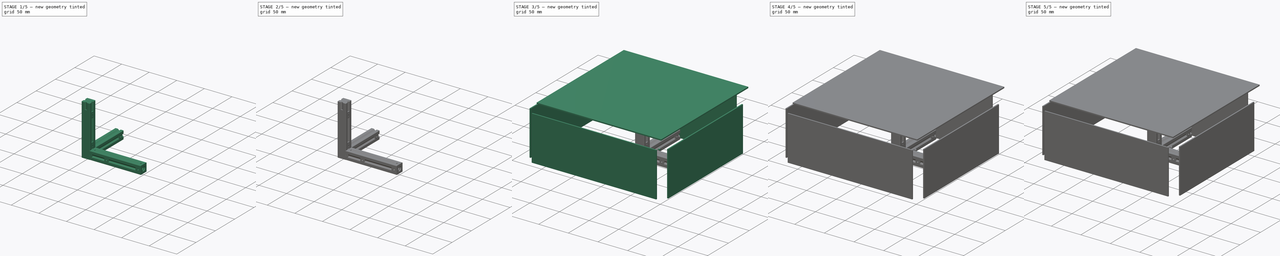
[diagram: build sequence overview — one tinted view per stage of 5, left to right]
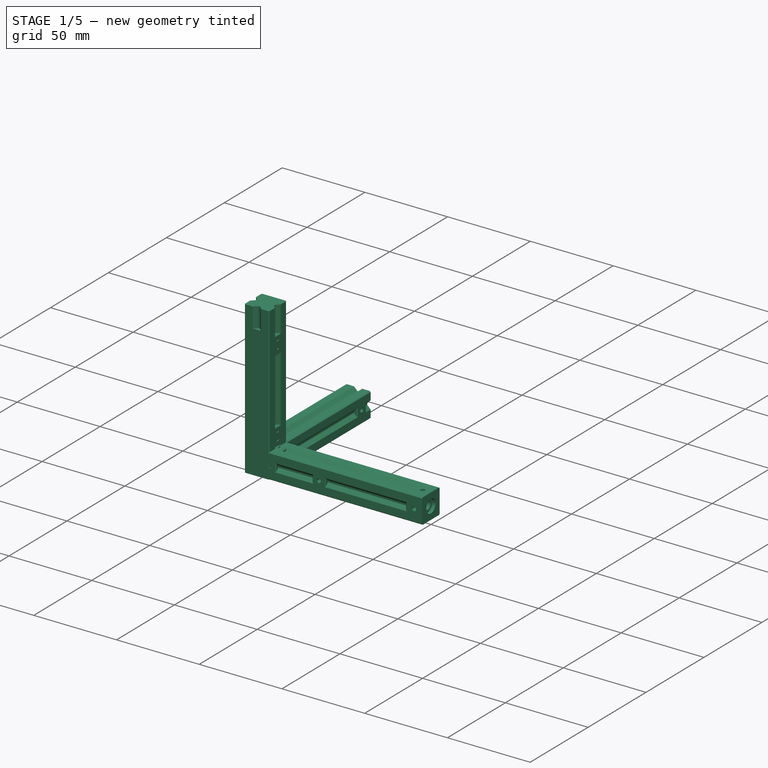
[diagram: stage 1 of 5 — iso view after this stage's code; geometry added in this stage tinted green]
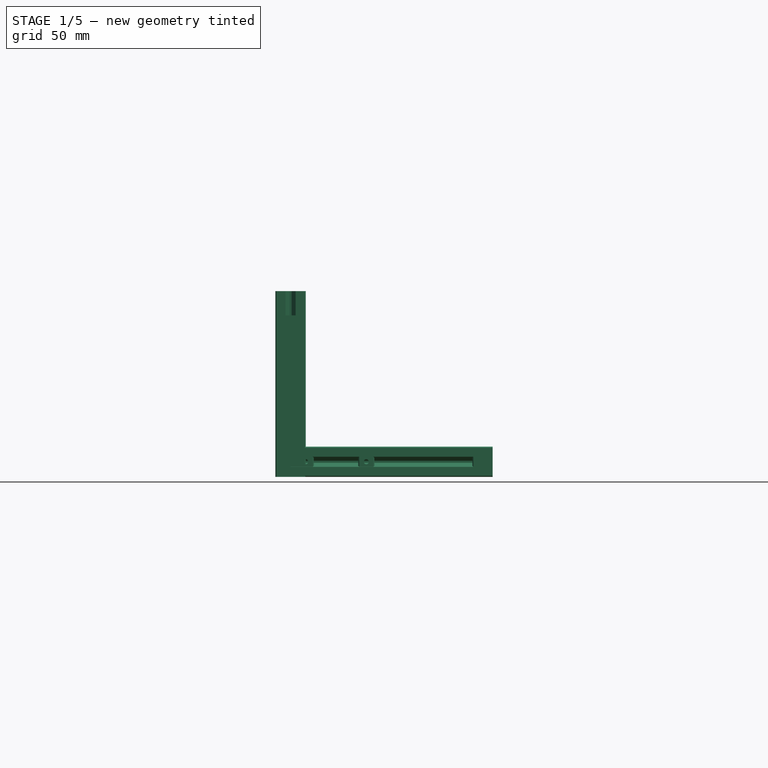
[diagram: stage 1 of 5 — front view after this stage's code; geometry added in this stage tinted green]
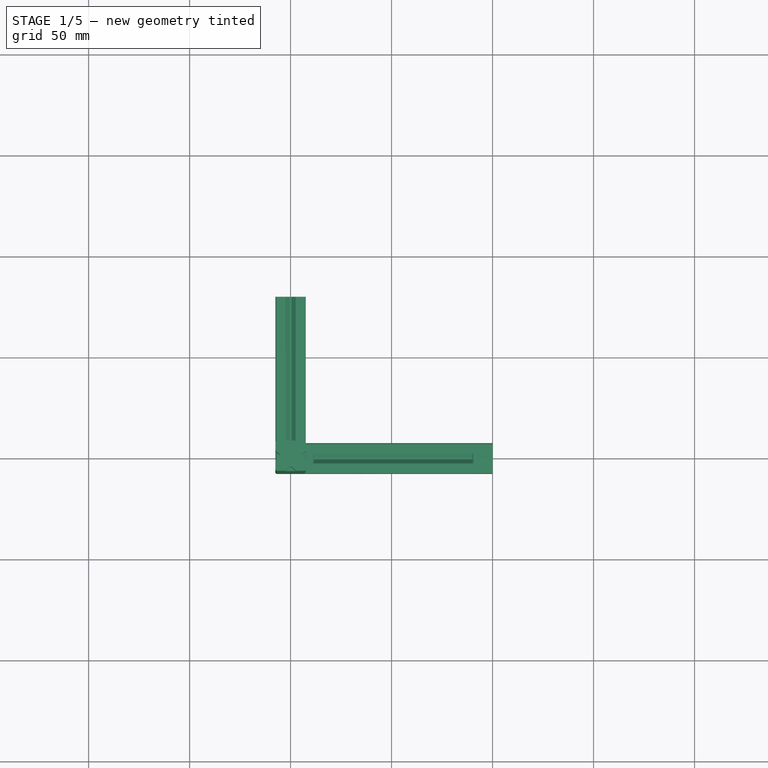
[diagram: stage 1 of 5 — top view after this stage's code; geometry added in this stage tinted green]
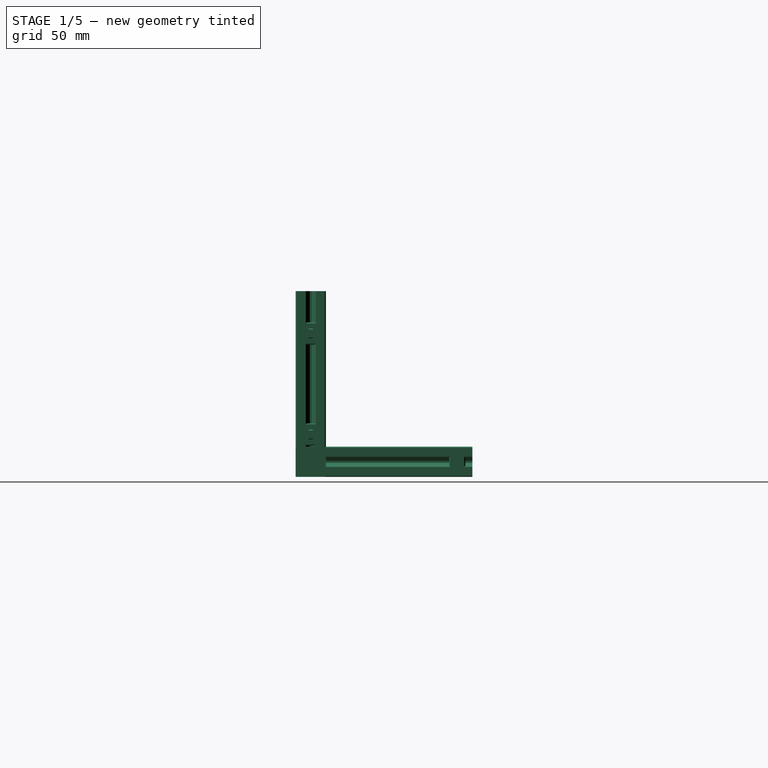
[diagram: stage 1 of 5 — right view after this stage's code; geometry added in this stage tinted green]
FCSTD DOCUMENT  (FreeCAD 0.18R16146 (Git))
Label: printable-top-hat
License: All rights reserved
LicenseURL: http://en.wikipedia.org/wiki/All_rights_reserved
objects: Part::Feature×138, Part::Cylinder×65, Part::MultiFuse×50, Part::Box×40, Part::Cut×28, Part::Chamfer×19, App::DocumentObjectGroup×10, Part::MultiCommon×6, Sketcher::SketchObject×1, PartDesign::Body×1, Part::Fillet×1
note: 349 computed .brp shape members not serialized (recipe doc carries the construction recipe); baked Part::Feature solids carry a one-line shape summary decoded from their .brp

FEATURE [Part::Feature] Body004  label="_extrusion-base-300mm003"
  shape: bbox 15 x 15 x 300 mm, 27 faces (baked)
FEATURE [Part::Cylinder] Cylinder005
  Angle = 360
  AttacherType = Attacher::AttachEngine3D
  Height = 92
  Radius = 15
FEATURE [Part::MultiCommon] Common002
  Shapes = -> [Cylinder005,Body004]
FEATURE [Part::Cylinder] Cylinder006
  Angle = 360
  AttacherType = Attacher::AttachEngine3D
  Height = 5
  Radius = 3
FEATURE [Part::Cylinder] Cylinder007
  Angle = 360
  AttacherType = Attacher::AttachEngine3D
  Height = 5
  Radius = 2.05
FEATURE [Part::MultiFuse] Fusion004
  Shapes = -> [Cylinder006,Common002]
FEATURE [Part::Cut] Cut001004
  Base = -> Fusion004
  Tool = -> Cylinder007
FEATURE [Part::Feature] Cut001005  label="_side-joiner003"
  Placement = pos=(0,0,19.5) rot=(0,0,1;0rad)
  shape: bbox 4.5 x 15 x 15 mm, 19 faces (baked)
FEATURE [Part::Feature] Cut001006  label="_side-joiner004"
  Placement = pos=(0,0,19.5) rot=(0,0,1;1.5708rad)
  shape: bbox 15 x 4.5 x 15 mm, 19 faces (baked)
FEATURE [Part::Feature] Cut001007  label="_side-joiner005"
  Placement = pos=(0,0,69.5) rot=(0,0,1;1.5708rad)
  shape: bbox 15 x 4.5 x 15 mm, 19 faces (baked)
FEATURE [Part::Feature] Cut001008  label="_side-joiner006"
  Placement = pos=(0,0,69.5) rot=(0,0,1;0rad)
  shape: bbox 4.5 x 15 x 15 mm, 19 faces (baked)
FEATURE [Part::Cylinder] Cylinder008
  Angle = 360
  AttacherType = Attacher::AttachEngine3D
  Height = 10
  Placement = pos=(-3,0,19.5) rot=(0,-1,0;1.5708rad)
  Radius = 2.5
FEATURE [Part::Cylinder] Cylinder009
  Angle = 360
  AttacherType = Attacher::AttachEngine3D
  Height = 10
  Placement = pos=(0,-3,19.5) rot=(1,0,0;1.5708rad)
  Radius = 2.5
FEATURE [Part::Cylinder] Cylinder010
  Angle = 360
  AttacherType = Attacher::AttachEngine3D
  Height = 10
  Placement = pos=(0,-3,69.5) rot=(1,0,0;1.5708rad)
  Radius = 2.5
FEATURE [Part::Cylinder] Cylinder011
  Angle = 360
  AttacherType = Attacher::AttachEngine3D
  Height = 10
  Placement = pos=(-3,0,69.5) rot=(0,-1,0;1.5708rad)
  Radius = 2.5
FEATURE [Part::Feature] Common004001  label="Common005"
  Placement = pos=(-2e-15,0,7.5) rot=(0,1,0;1.5708rad)
  shape: bbox 100 x 15 x 15 mm, 27 faces (baked)
FEATURE [Part::Feature] Chamfer012001  label="Chamfer013"
  shape: bbox 10 x 15 x 12.5 mm, 25 faces (baked)
FEATURE [Part::Feature] Fusion025001  label="Fusion028"
  shape: bbox 4.1 x 26 x 15.05 mm, 9 faces, 3 solids (baked)
FEATURE [Part::MultiFuse] Fusion025002
  Shapes = -> [Chamfer012001,Common004001]
FEATURE [Part::Cut] Cut001027
  Base = -> Fusion025002
  Tool = -> Fusion025001
FEATURE [Part::Cylinder] Cylinder036
  Angle = 360
  AttacherType = Attacher::AttachEngine3D
  Height = 2
  Placement = pos=(98,0,7.5) rot=(0,1,0;1.5708rad)
  Radius = 4
FEATURE [Part::Cut] Cut001032
  Base = -> Cut001027
  Tool = -> Cylinder036
FEATURE [Part::Feature] Cut001033  label="_side-joiner011"
  Placement = pos=(37.5,-8e-15,7.5) rot=(0.57735,0.57735,0.57735;2.0944rad)
  shape: bbox 15 x 4.5 x 15 mm, 19 faces (baked)
FEATURE [Part::Feature] Cut001034  label="_side-joiner012"
  Placement = pos=(7.5,-2e-15,7.5) rot=(0,1,0;1.5708rad)
  shape: bbox 15 x 15 x 4.5 mm, 19 faces (baked)
FEATURE [Part::Cylinder] Cylinder037
  Angle = 360
  AttacherType = Attacher::AttachEngine3D
  Height = 10
  Placement = pos=(7.5,0,10.5) rot=(0,0,1;0rad)
  Radius = 2.5
FEATURE [Part::Cylinder] Cylinder038
  Angle = 360
  AttacherType = Attacher::AttachEngine3D
  Height = 10
  Placement = pos=(37.5,-3,7.5) rot=(1,0,0;1.5708rad)
  Radius = 2.5
FEATURE [Part::Feature] Cut001036  label="_side-joiner013"
  Placement = pos=(7.5,-2e-15,7.5) rot=(0.707107,0,0.707107;3.14159rad)
  shape: bbox 15 x 15 x 4.5 mm, 19 faces (baked)
FEATURE [Part::Cylinder] Cylinder039
  Angle = 360
  AttacherType = Attacher::AttachEngine3D
  Height = 10
  Placement = pos=(7.5,0,4.5) rot=(1,0,0;3.14159rad)
  Radius = 2.5
FEATURE [Part::Feature] Cut001031001  label="100mm-common-001"
  Placement = pos=(-107.5,-100,80) rot=(0,0,1;1.5708rad)
  shape: bbox 15 x 100 x 15 mm, 67 faces (baked)
FEATURE [Part::Feature] Cut001038002  label="100mm-common-002"
  Placement = pos=(107.5,-100,80) rot=(0,0,1;1.5708rad)
  shape: bbox 15 x 100 x 15 mm, 67 faces (baked)
FEATURE [Part::Feature] Cut001031002  label="100mm-common-003"
  Placement = pos=(-100,-107.5,80) rot=(0,0,1;0rad)
  shape: bbox 100 x 15 x 15 mm, 67 faces (baked)
FEATURE [Part::Feature] Cut001038003  label="100mm-common-004"
  Placement = pos=(-100,-107.5,0) rot=(0,0,1;0rad)
  shape: bbox 100 x 15 x 15 mm, 67 faces (baked)
FEATURE [Part::Feature] Cut001038004  label="100mm-common-005"
  Placement = pos=(100,-107.5,80) rot=(0,0,1;3.14159rad)
  shape: bbox 100 x 15 x 15 mm, 67 faces (baked)
FEATURE [Part::Feature] Cut001038005  label="100mm-common-006"
  Placement = pos=(100,-107.5,0) rot=(0,0,1;3.14159rad)
  shape: bbox 100 x 15 x 15 mm, 67 faces (baked)
FEATURE [Part::Feature] Cut001038009  label="100mm-common-007"
  Placement = pos=(-100,107.5,80) rot=(0,0,1;0rad)
  shape: bbox 100 x 15 x 15 mm, 67 faces (baked)
FEATURE [Part::Feature] Cut001038010  label="100mm-common-008"
  Placement = pos=(100,107.5,80) rot=(0,0,1;3.14159rad)
  shape: bbox 100 x 15 x 15 mm, 67 faces (baked)
FEATURE [Part::Feature] Cut001038011  label="100mm-common-009"
  Placement = pos=(100,107.5,32.15) rot=(0,0,1;3.14159rad)
  shape: bbox 100 x 15 x 15 mm, 67 faces (baked)
FEATURE [Part::Feature] Cut001038012  label="100mm-common-010"
  Placement = pos=(-100,107.5,32.15) rot=(0,0,1;0rad)
  shape: bbox 100 x 15 x 15 mm, 67 faces (baked)
FEATURE [Part::Feature] Cut001038013  label="_side-joiner014"
  Placement = pos=(37.5,-8e-15,7.5) rot=(0.57735,-0.57735,0.57735;4.18879rad)
  shape: bbox 15 x 4.5 x 15 mm, 19 faces (baked)
FEATURE [Part::Cylinder] Cylinder042
  Angle = 360
  AttacherType = Attacher::AttachEngine3D
  Height = 10
  Placement = pos=(37.5,3,7.5) rot=(-1,0,0;1.5708rad)
  Radius = 2.5
FEATURE [Part::MultiFuse] Fusion025010
  Shapes = -> [Cylinder042,Cylinder039,Cylinder037,Cylinder038]
FEATURE [Part::Cut] Cut001038014
  Base = -> Cut001032
  Tool = -> Fusion025010
FEATURE [Part::MultiFuse] Fusion025011
  Shapes = -> [Cut001038013,Cut001033,Cut001034,Cut001036]
FEATURE [Part::Feature] Cut001038017  label="_side-joiner015"
  Placement = pos=(0,0,69.5) rot=(0,0,1;3.14159rad)
  shape: bbox 4.5 x 15 x 15 mm, 19 faces (baked)
FEATURE [Part::Feature] Cut001038018  label="_side-joiner016"
  Placement = pos=(0,0,19.5) rot=(0,0,1;3.14159rad)
  shape: bbox 4.5 x 15 x 15 mm, 19 faces (baked)
FEATURE [Part::Cylinder] Cylinder043
  Angle = 360
  AttacherType = Attacher::AttachEngine3D
  Height = 10
  Placement = pos=(3,0,69.5) rot=(0.707107,0,0.707107;3.14159rad)
  Radius = 2.5
FEATURE [Part::Cylinder] Cylinder044
  Angle = 360
  AttacherType = Attacher::AttachEngine3D
  Height = 10
  Placement = pos=(3,0,19.5) rot=(0.707107,0,0.707107;3.14159rad)
  Radius = 2.5
FEATURE [Part::MultiFuse] Fusion025017
  Shapes = -> [Cylinder044,Cylinder043,Cylinder008,Cylinder009,Cylinder010,Cylinder011]
FEATURE [Part::Cut] Cut001038019
  Base = -> Cut001004
  Tool = -> Fusion025017
FEATURE [Part::MultiFuse] Fusion025018
  Shapes = -> [Cut001038018,Cut001005,Cut001006,Cut001007,Cut001008,Cut001038017]
FEATURE [Part::MultiFuse] Fusion025019  label="verticel-front"
  Shapes = -> [Fusion025018,Cut001038019]
FEATURE [Part::Box] Box002042  label="Cube039"
  AttacherType = Attacher::AttachEngine3D
  Height = 3
  Length = 100
  Placement = pos=(0,-3,0) rot=(0,0,1;0rad)
  Width = 6
FEATURE [Part::Cylinder] Cylinder059
  Angle = 360
  AttacherType = Attacher::AttachEngine3D
  Height = 79
  Placement = pos=(10,0,7.5) rot=(0,1,0;1.5708rad)
  Radius = 3
FEATURE [Part::Cylinder] Cylinder060
  Angle = 360
  AttacherType = Attacher::AttachEngine3D
  Height = 11
  Placement = pos=(0,0,6) rot=(0,0,1;0rad)
  Radius = 3
FEATURE [Part::Box] Box002043  label="Cube040"
  AttacherType = Attacher::AttachEngine3D
  Height = 92
  Length = 6
  Placement = pos=(-3,5,0) rot=(0,0,1;0rad)
  Width = 2.5
FEATURE [Part::Cylinder] Cylinder061
  Angle = 360
  AttacherType = Attacher::AttachEngine3D
  Height = 45
  Placement = pos=(0,0,22) rot=(0,0,1;0rad)
  Radius = 3
FEATURE [Part::Cylinder] Cylinder062
  Angle = 360
  AttacherType = Attacher::AttachEngine3D
  Height = 20
  Placement = pos=(0,0,72) rot=(0,0,1;0rad)
  Radius = 3
FEATURE [Part::MultiFuse] Fusion025019011008019006002  label="vertical-front-alt"
  Shapes = -> [Cylinder062,Cylinder061,Box002043,Cylinder060,Fusion025019]
FEATURE [App::DocumentObjectGroup] Group  label="Source"
  Group = -> [Body,Cut001,Chamfer010,Chamfer011,Chamfer012008,Chamfer012008025,Cut001038015011012,Fusion025019011008,Fusion025019011008019003,Fusion025019011008019004,Fusion025019011008019005,Fusion025019011008019006,Fusion025019011008019006002]
FEATURE [Part::Feature] Fusion025019011008019003001  label="100mm-common-alt001"
  shape: bbox 100 x 15 x 15 mm, 66 faces (baked)
FEATURE [Part::Feature] Fusion025019011008019004001  label="vertical-back-alt001"
  shape: bbox 15 x 15 x 80 mm, 79 faces (baked)
FEATURE [Part::Feature] Fusion025019011008019005001  label="85mm-bottom-common-alt001"
  shape: bbox 15 x 85 x 15 mm, 53 faces (baked)
FEATURE [Part::Feature] Fusion025019011008019006003  label="100mm-top-back-alt001"
  shape: bbox 100 x 15 x 15 mm, 69 faces (baked)
FEATURE [Part::Feature] Fusion025019011008019006002001  label="vertical-front-alt001"
  shape: bbox 15 x 15 x 92 mm, 83 faces (baked)
FEATURE [Part::Cylinder] Cylinder063
  Angle = 360
  AttacherType = Attacher::AttachEngine3D
  Height = 4.5
  Radius = 2.5
FEATURE [Part::Cylinder] Cylinder064
  Angle = 360
  AttacherType = Attacher::AttachEngine3D
  Height = 4.5
  Radius = 1.25
FEATURE [Part::Cut] Cut001038015011012005  label="self-tapping-adapter"
  Base = -> Cylinder063
  Tool = -> Cylinder064
FEATURE [Part::Feature] Cut001038015011012005001  label="self-tapping-adapter001"
  Placement = pos=(7.5,0,10.5) rot=(0,0,1;0rad)
  shape: bbox 5 x 5 x 4.5 mm, 4 faces (baked)
FEATURE [Part::Feature] Cut001038015011012005002  label="self-tapping-adapter002"
  Placement = pos=(95,0,10.5) rot=(0,0,1;0rad)
  shape: bbox 5 x 5 x 4.5 mm, 4 faces (baked)
FEATURE [Part::Feature] Cut001038015011012005003  label="self-tapping-adapter003"
  Placement = pos=(95,3,7.5) rot=(-1,0,0;1.5708rad)
  shape: bbox 5 x 4.5 x 5 mm, 4 faces (baked)
FEATURE [Part::Feature] Cut001038015011012005004  label="self-tapping-adapter004"
  Placement = pos=(95,-3,7.5) rot=(1,0,0;1.5708rad)
  shape: bbox 5 x 4.5 x 5 mm, 4 faces (baked)
FEATURE [Part::Feature] Cut001038015011012005005  label="self-tapping-adapter005"
  Placement = pos=(7.5,3,7.5) rot=(-1,0,0;1.5708rad)
  shape: bbox 5 x 4.5 x 5 mm, 4 faces (baked)
FEATURE [Part::Feature] Cut001038015011012005006  label="self-tapping-adapter006"
  Placement = pos=(4.5,0,7.5) rot=(0,-1,0;1.5708rad)
  shape: bbox 4.5 x 5 x 5 mm, 4 faces (baked)
FEATURE [Part::Feature] Cut001038015011012005007  label="self-tapping-adapter007"
  Placement = pos=(7.5,-3,7.5) rot=(1,0,0;1.5708rad)
  shape: bbox 5 x 4.5 x 5 mm, 4 faces (baked)
FEATURE [Part::MultiFuse] Fusion025019011008019006002002  label="100-mm-common-st"
  Shapes = -> [Cut001038015011012005001,Cut001038015011012005006,Cut001038015011012005002,Cut001038015011012005007,Cut001038015011012005003,Cut001038015011012005004,Cut001038015011012005005,Fusion025019011008019003001]
FEATURE [Part::Feature] Cut001038015011012005008  label="self-tapping-adapter008"
  Placement = pos=(-3,0,22.5) rot=(0,-1,0;1.5708rad)
  shape: bbox 4.5 x 5 x 5 mm, 4 faces (baked)
FEATURE [Part::Feature] Cut001038015011012005009  label="self-tapping-adapter009"
  Placement = pos=(-3,0,72.5) rot=(0,-1,0;1.5708rad)
  shape: bbox 4.5 x 5 x 5 mm, 4 faces (baked)
FEATURE [Part::Feature] Cut001038015011012005010  label="self-tapping-adapter010"
  Placement = pos=(7.5,0,72.5) rot=(0,-1,0;1.5708rad)
  shape: bbox 4.5 x 5 x 5 mm, 4 faces (baked)
FEATURE [Part::Feature] Cut001038015011012005011  label="self-tapping-adapter011"
  Placement = pos=(7.5,0,22.5) rot=(0,-1,0;1.5708rad)
  shape: bbox 4.5 x 5 x 5 mm, 4 faces (baked)
FEATURE [Part::Feature] Cut001038015011012005012  label="self-tapping-adapter012"
  Placement = pos=(0,7.5,38.5) rot=(0.57735,-0.57735,0.57735;2.0944rad)
  shape: bbox 5 x 4.5 x 5 mm, 4 faces (baked)
FEATURE [Part::Feature] Cut001038015011012005013  label="self-tapping-adapter013"
  Placement = pos=(0,7.5,56.5) rot=(0.57735,-0.57735,0.57735;2.0944rad)
  shape: bbox 5 x 4.5 x 5 mm, 4 faces (baked)
FEATURE [Part::MultiFuse] Fusion025019011008019006002003  label="vertical-back-st"
  Shapes = -> [Cut001038015011012005013,Cut001038015011012005008,Cut001038015011012005009,Cut001038015011012005011,Cut001038015011012005010,Cut001038015011012005012,Fusion025019011008019004001]
FEATURE [Part::Feature] Cut001038015011012005014  label="self-tapping-adapter014"
  Placement = pos=(3,0,19.5) rot=(0,1,0;1.5708rad)
  shape: bbox 4.5 x 5 x 5 mm, 4 faces (baked)
FEATURE [Part::Feature] Cut001038015011012005015  label="self-tapping-adapter015"
  Placement = pos=(3,0,69.5) rot=(0,1,0;1.5708rad)
  shape: bbox 4.5 x 5 x 5 mm, 4 faces (baked)
FEATURE [Part::Feature] Cut001038015011012005016  label="self-tapping-adapter016"
  Placement = pos=(-7.5,0,69.5) rot=(0,1,0;1.5708rad)
  shape: bbox 4.5 x 5 x 5 mm, 4 faces (baked)
FEATURE [Part::Feature] Cut001038015011012005017  label="self-tapping-adapter017"
  Placement = pos=(-7.5,0,19.5) rot=(0,1,0;1.5708rad)
  shape: bbox 4.5 x 5 x 5 mm, 4 faces (baked)
FEATURE [Part::Feature] Cut001038015011012005018  label="self-tapping-adapter018"
  Placement = pos=(-4e-15,-3,19.5) rot=(0.57735,0.57735,-0.57735;2.0944rad)
  shape: bbox 5 x 4.5 x 5 mm, 4 faces (baked)
FEATURE [Part::Feature] Cut001038015011012005019  label="self-tapping-adapter019"
  Placement = pos=(-2e-14,-3,69.5) rot=(0.57735,0.57735,-0.57735;2.0944rad)
  shape: bbox 5 x 4.5 x 5 mm, 4 faces (baked)
FEATURE [Part::Feature] Cut001038015011012005020  label="self-tapping-adapter020"
  shape: bbox 5 x 5 x 4.5 mm, 4 faces (baked)
FEATURE [Part::MultiFuse] Fusion025019011008019006002004  label="vertical-front-st"
  Shapes = -> [Cut001038015011012005014,Cut001038015011012005016,Fusion025019011008019006002001,Cut001038015011012005018,Cut001038015011012005017,Cut001038015011012005015,Cut001038015011012005020,Cut001038015011012005019]
FEATURE [Part::Feature] Cut001038015011012005021  label="self-tapping-adapter021"
  Placement = pos=(37.5,-3,7.5) rot=(1,0,0;1.5708rad)
  shape: bbox 5 x 4.5 x 5 mm, 4 faces (baked)
FEATURE [Part::Feature] Cut001038015011012005022  label="self-tapping-adapter022"
  Placement = pos=(95,-3,7.5) rot=(1,0,0;1.5708rad)
  shape: bbox 5 x 4.5 x 5 mm, 4 faces (baked)
FEATURE [Part::Feature] Cut001038015011012005023  label="self-tapping-adapter023"
  Placement = pos=(95,7.5,7.5) rot=(1,0,0;1.5708rad)
  shape: bbox 5 x 4.5 x 5 mm, 4 faces (baked)
FEATURE [Part::Feature] Cut001038015011012005024  label="self-tapping-adapter024"
  Placement = pos=(95,5e-15,15) rot=(1,0,0;3.14159rad)
  shape: bbox 5 x 5 x 4.5 mm, 4 faces (baked)
FEATURE [Part::Feature] Cut001038015011012005025  label="self-tapping-adapter025"
  Placement = pos=(37.5,7.5,7.5) rot=(1,0,0;1.5708rad)
  shape: bbox 5 x 4.5 x 5 mm, 4 faces (baked)
FEATURE [Part::Feature] Cut001038015011012005026  label="self-tapping-adapter026"
  Placement = pos=(7.5,0,10.5) rot=(0,0,1;0rad)
  shape: bbox 5 x 5 x 4.5 mm, 4 faces (baked)
FEATURE [Part::Feature] Cut001038015011012005027  label="self-tapping-adapter027"
  Placement = pos=(4.5,0,7.5) rot=(0,-1,0;1.5708rad)
  shape: bbox 4.5 x 5 x 5 mm, 4 faces (baked)
FEATURE [Part::MultiFuse] Fusion025019011008019006002005  label="100mm-top-backst"
  Shapes = -> [Cut001038015011012005021,Cut001038015011012005027,Cut001038015011012005025,Cut001038015011012005026,Cut001038015011012005022,Cut001038015011012005024,Cut001038015011012005023,Fusion025019011008019006003]
FEATURE [Part::Feature] Cut001038015011012005028  label="self-tapping-adapter028"
  Placement = pos=(0,0,10.5) rot=(0,0,1;0rad)
  shape: bbox 5 x 5 x 4.5 mm, 4 faces (baked)
FEATURE [Part::Feature] Cut001038015011012005029  label="self-tapping-adapter029"
  Placement = pos=(3,0,7.5) rot=(0,1,0;1.5708rad)
  shape: bbox 4.5 x 5 x 5 mm, 4 faces (baked)
FEATURE [Part::Feature] Cut001038015011012005030  label="self-tapping-adapter030"
  Placement = pos=(-7.5,0,7.5) rot=(0,1,0;1.5708rad)
  shape: bbox 4.5 x 5 x 5 mm, 4 faces (baked)
FEATURE [Part::Feature] Cut001038015011012005031  label="self-tapping-adapter031"
  Placement = pos=(-7.5,72.5,7.5) rot=(0,1,0;1.5708rad)
  shape: bbox 4.5 x 5 x 5 mm, 4 faces (baked)
FEATURE [Part::Feature] Cut001038015011012005032  label="self-tapping-adapter032"
  Placement = pos=(3,72.5,7.5) rot=(0,1,0;1.5708rad)
  shape: bbox 4.5 x 5 x 5 mm, 4 faces (baked)
FEATURE [Part::MultiFuse] Fusion025019011008019006002006  label="85mm-bottom-common-st"
  Shapes = -> [Cut001038015011012005032,Cut001038015011012005029,Cut001038015011012005030,Cut001038015011012005031,Cut001038015011012005028,Fusion025019011008019005001]
FEATURE [App::DocumentObjectGroup] Group009  label="seft-tapping-ver"
  Group = -> [Cut001038015011012005,Fusion025019011008019006002002,Fusion025019011008019006002003,Fusion025019011008019006002004,Fusion025019011008019006002005,Fusion025019011008019006002006]
FEATURE [Part::Feature] Fusion025019011008019006002006001  label="85mm-bottom-common-st_x4"
  shape: bbox 15 x 85 x 15 mm, 53 faces (baked)
FEATURE [Part::Feature] Fusion025019011008019006002005001  label="100mm-top-back-st_x2"
  shape: bbox 100 x 15 x 15 mm, 71 faces (baked)
FEATURE [Part::Feature] Fusion025019011008019006002004001  label="vertical-front-st_x2"
  Placement = pos=(0,2e-15,7.5) rot=(-1,0,0;1.5708rad)
  shape: bbox 15 x 92 x 15 mm, 85 faces (baked)
FEATURE [Part::Feature] Fusion025019011008019006002003001  label="vertical-back-st_x2"
  Placement = pos=(0,2e-15,7.5) rot=(1,0,0;1.5708rad)
  shape: bbox 15 x 80 x 15 mm, 79 faces (baked)
FEATURE [Part::Feature] Fusion025019011008019006002002001  label="100-mm-common-st_x12"
  shape: bbox 100 x 15 x 15 mm, 68 faces (baked)
FEATURE [App::DocumentObjectGroup] Group010  label="self-tapping-export"
  Group = -> [Fusion025019011008019006002006001,Fusion025019011008019006002005001,Fusion025019011008019006002004001,Fusion025019011008019006002003001,Fusion025019011008019006002002001]
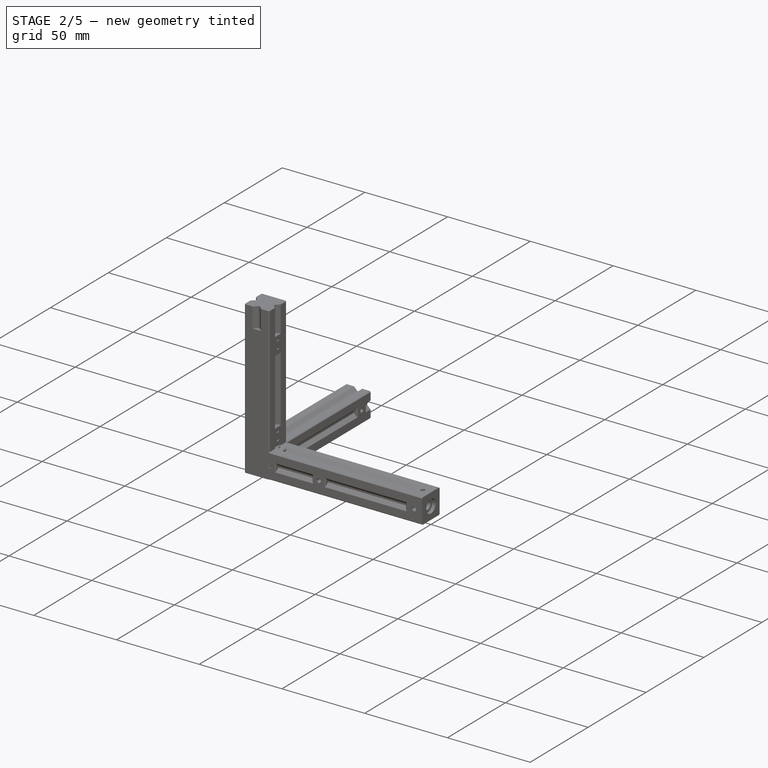
[diagram: stage 2 of 5 — iso view after this stage's code; geometry added in this stage tinted green]
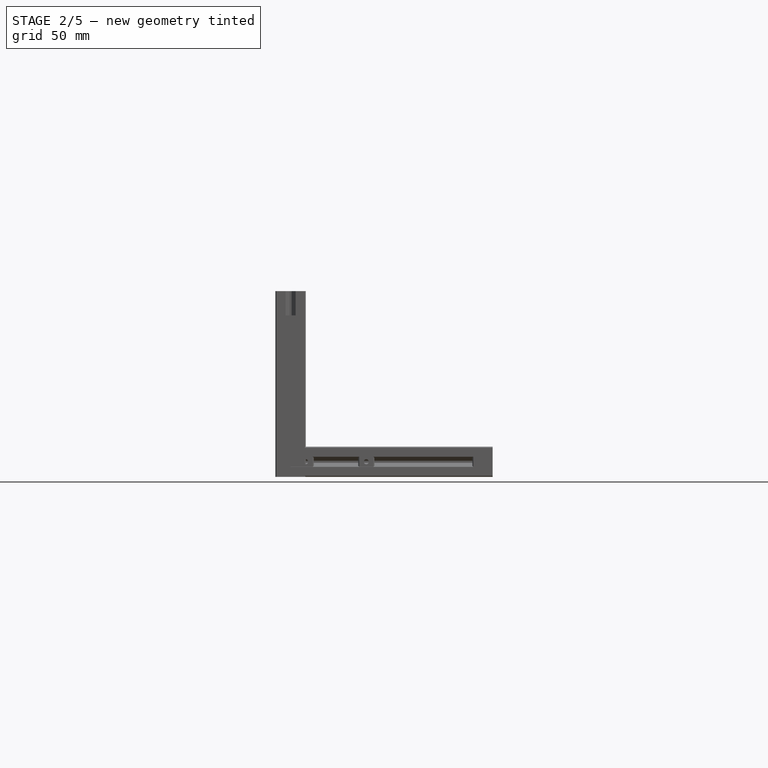
[diagram: stage 2 of 5 — front view after this stage's code; geometry added in this stage tinted green]
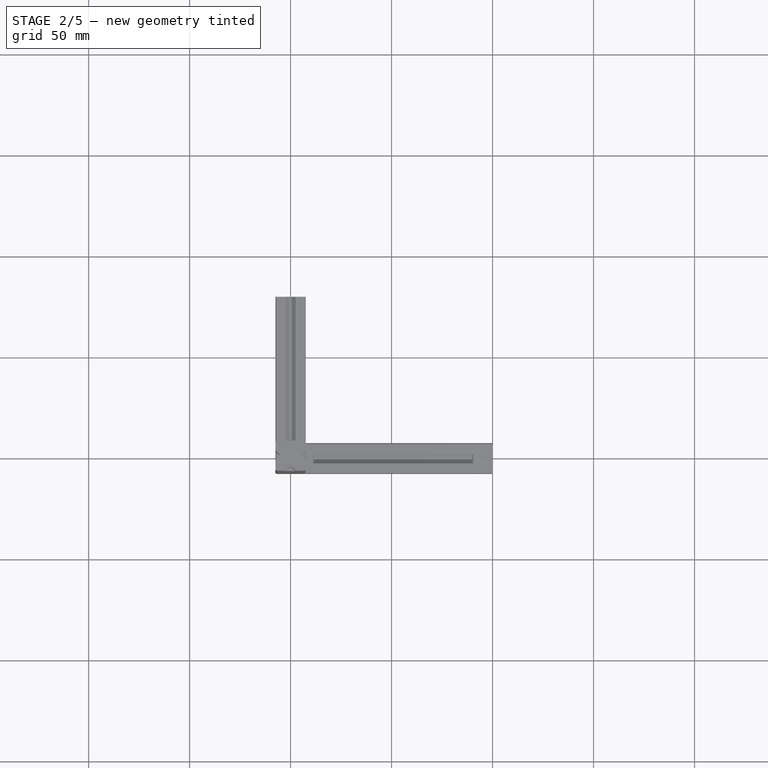
[diagram: stage 2 of 5 — top view after this stage's code; geometry added in this stage tinted green]
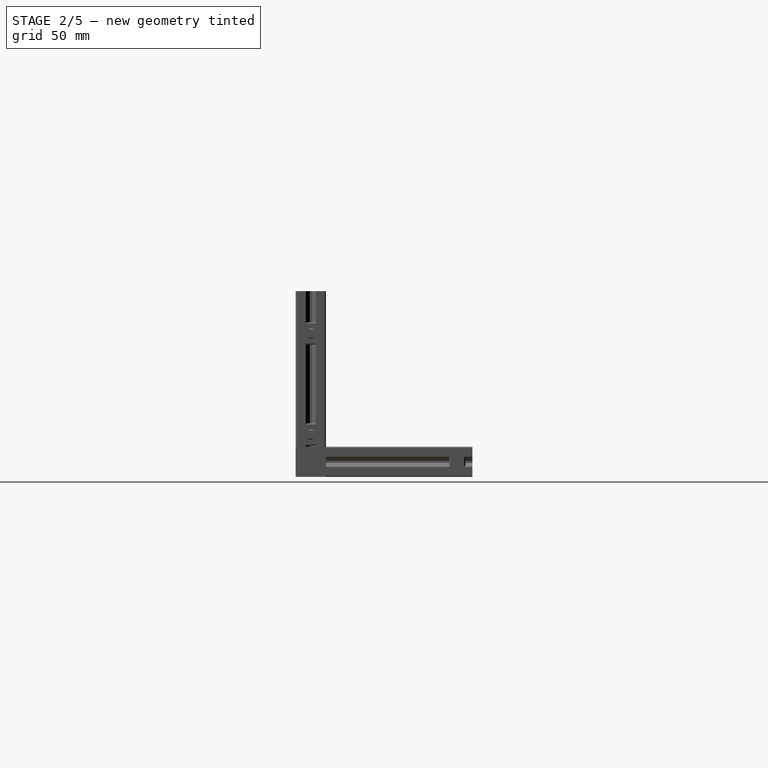
[diagram: stage 2 of 5 — right view after this stage's code; geometry added in this stage tinted green]
FEATURE [Part::Feature] Body003  label="_extrusion-base-300mm002"
  shape: bbox 15 x 15 x 300 mm, 27 faces (baked)
FEATURE [Part::Cylinder] Cylinder002
  Angle = 360
  AttacherType = Attacher::AttachEngine3D
  Height = 80
  Radius = 16
FEATURE [Part::Feature] Cut001001  label="_side-joiner001"
  Placement = pos=(0,0,22.5) rot=(0,0,1;0rad)
  shape: bbox 4.5 x 15 x 15 mm, 19 faces (baked)
FEATURE [Part::Feature] Cut001002  label="_side-joiner002"
  Placement = pos=(0,0,72.5) rot=(0,0,1;0rad)
  shape: bbox 4.5 x 15 x 15 mm, 19 faces (baked)
FEATURE [Part::Cylinder] Cylinder003
  Angle = 360
  AttacherType = Attacher::AttachEngine3D
  Height = 10
  Placement = pos=(-3,0,22.5) rot=(0,-1,0;1.5708rad)
  Radius = 2.5
FEATURE [Part::Cylinder] Cylinder004
  Angle = 360
  AttacherType = Attacher::AttachEngine3D
  Height = 10
  Placement = pos=(3,0,72.5) rot=(0.707107,0,0.707107;3.14159rad)
  Radius = 2.5
FEATURE [Part::Feature] Body001001  label="_extrusion-base-300mm004"
  shape: bbox 15 x 15 x 300 mm, 27 faces (baked)
FEATURE [Part::Cylinder] Cylinder012
  Angle = 360
  AttacherType = Attacher::AttachEngine3D
  Height = 85
  Radius = 13
FEATURE [Part::MultiCommon] Common003
  Placement = pos=(0,2e-15,7.5) rot=(1,0,0;1.5708rad)
  Shapes = -> [Cylinder012,Body001001]
FEATURE [Part::Feature] Cut001010  label="_side-joiner007"
  Placement = pos=(0,-7.5,7.5) rot=(1,0,0;1.5708rad)
  shape: bbox 4.5 x 15 x 15 mm, 19 faces (baked)
FEATURE [Part::Cylinder] Cylinder013
  Angle = 360
  AttacherType = Attacher::AttachEngine3D
  Height = 10
  Placement = pos=(-3,-7.5,7.5) rot=(0,-1,0;1.5708rad)
  Radius = 2.5
FEATURE [Part::Cylinder] Cylinder014
  Angle = 360
  AttacherType = Attacher::AttachEngine3D
  Height = 10
  Placement = pos=(-3,0,7.5) rot=(0,-1,0;1.5708rad)
  Radius = 2.05
FEATURE [Part::Cylinder] Cylinder015
  Angle = 360
  AttacherType = Attacher::AttachEngine3D
  Height = 10
  Placement = pos=(3,0,7.5) rot=(0,1,0;1.5708rad)
  Radius = 2.05
FEATURE [Part::Cylinder] Cylinder016
  Angle = 360
  AttacherType = Attacher::AttachEngine3D
  Height = 10
  Placement = pos=(-3e-15,0,10.5) rot=(0,0,1;0rad)
  Radius = 2.05
FEATURE [Part::Box] Box002  label="Cube002"
  AttacherType = Attacher::AttachEngine3D
  Height = 10
  Length = 4
  Placement = pos=(-7.5,-5,2.5) rot=(0,0,1;0rad)
  Width = 10
FEATURE [Part::Feature] Box002001  label="Cube003"
  Placement = pos=(-7.5,0,7.5) rot=(0,1,0;1.5708rad)
  shape: bbox 10 x 10 x 4 mm, 6 faces (baked)
FEATURE [Part::Feature] Box002002  label="Cube004"
  Placement = pos=(-2e-15,0,15) rot=(0,1,0;3.14159rad)
  shape: bbox 4 x 10 x 10 mm, 6 faces (baked)
FEATURE [Part::MultiFuse] Fusion009
  Shapes = -> [Box002,Box002001,Box002002]
FEATURE [Part::MultiFuse] Fusion011
  Shapes = -> [Cylinder016,Cylinder014,Cylinder015]
FEATURE [Part::Chamfer] Chamfer001
  Base = -> Fusion009
  Edges = 3 edges r=0.5: [Edge3,Edge35,Edge51]
FEATURE [Part::Cylinder] Cylinder017
  Angle = 360
  AttacherType = Attacher::AttachEngine3D
  Height = 2
  Placement = pos=(0,-3,7.5) rot=(1,0,0;1.5708rad)
  Radius = 4
FEATURE [Part::Cylinder] Cylinder033
  Angle = 360
  AttacherType = Attacher::AttachEngine3D
  Height = 5
  Placement = pos=(5,0,7.5) rot=(0,-1,0;1.5708rad)
  Radius = 2.05
FEATURE [Part::Cylinder] Cylinder034
  Angle = 360
  AttacherType = Attacher::AttachEngine3D
  Height = 5
  Placement = pos=(5,0,7.5) rot=(0,-1,0;1.5708rad)
  Radius = 3
FEATURE [Part::MultiFuse] Fusion025012
  Shapes = -> [Cut001038014,Fusion025011]
FEATURE [Part::MultiFuse] Fusion025013
  Shapes = -> [Fusion025012,Cylinder034]
FEATURE [Part::Cut] Cut001038015  label="100-top-back"
  Base = -> Fusion025013
  Tool = -> Cylinder033
FEATURE [Part::Feature] Chamfer012008001  label="panel-clip-003"
  Placement = pos=(119,-12.5,87.5) rot=(0,-1,0;1.5708rad)
  shape: bbox 5.8 x 25 x 15 mm, 54 faces (baked)
FEATURE [Part::Feature] Chamfer012008002  label="panel-clip-004"
  Placement = pos=(119,-2.5,7.5) rot=(0.707107,0,-0.707107;3.14159rad)
  shape: bbox 5.8 x 25 x 15 mm, 54 faces (baked)
FEATURE [Part::Feature] Part__Mirroring002  label="panel-clip-001"
  shape: bbox 5.8 x 25 x 15 mm, 54 faces (baked)
FEATURE [Part::Feature] Part__Mirroring001001  label="panel-clip-002"
  shape: bbox 5.8 x 25 x 15 mm, 54 faces (baked)
FEATURE [Part::Feature] Chamfer012008003  label="panel-clip-005"
  Placement = pos=(-107.5,-12.5,99) rot=(0,1,0;3.14159rad)
  shape: bbox 15 x 25 x 5.8 mm, 54 faces (baked)
FEATURE [Part::Feature] Part__Mirroring001002  label="panel-clip-006"
  Placement = pos=(20,0,-20) rot=(0,1,0;1.5708rad)
  shape: bbox 15 x 25 x 5.8 mm, 54 faces (baked)
FEATURE [Part::Feature] Chamfer012008004  label="panel-clip-007"
  Placement = pos=(12.5,-119,7.5) rot=(0.57735,-0.57735,-0.57735;4.18879rad)
  shape: bbox 25 x 5.8 x 15 mm, 54 faces (baked)
FEATURE [Part::Feature] Chamfer012008005  label="panel-clip-008"
  Placement = pos=(-12.5,-119,87.5) rot=(0.57735,0.57735,0.57735;4.18879rad)
  shape: bbox 25 x 5.8 x 15 mm, 54 faces (baked)
FEATURE [Part::Feature] Chamfer012008006  label="panel-clip-009"
  Placement = pos=(-12.5,107.5,99) rot=(0.707107,0.707107,0;3.14159rad)
  shape: bbox 25 x 15 x 5.8 mm, 54 faces (baked)
FEATURE [Part::Feature] Chamfer012008007  label="panel-clip-010"
  Placement = pos=(12.5,-107.5,99) rot=(0.707107,-0.707107,0;3.14159rad)
  shape: bbox 25 x 15 x 5.8 mm, 54 faces (baked)
FEATURE [App::DocumentObjectGroup] Group003  label="Panel-clip-assembly"
  Group = -> [Part__Mirroring002,Part__Mirroring001001,Chamfer012008001,Chamfer012008002,Chamfer012008003,Part__Mirroring001002,Chamfer012008004,Chamfer012008005,Chamfer012008006,Chamfer012008007]
FEATURE [Part::Feature] Cut001038015008  label="_side-joiner017"
  Placement = pos=(0,-7.5,7.5) rot=(0,0.707107,-0.707107;3.14159rad)
  shape: bbox 4.5 x 15 x 15 mm, 19 faces (baked)
FEATURE [Part::Cylinder] Cylinder045
  Angle = 360
  AttacherType = Attacher::AttachEngine3D
  Height = 10
  Placement = pos=(3,-7.5,7.5) rot=(0,1,0;1.5708rad)
  Radius = 2.5
FEATURE [Part::MultiFuse] Fusion025019005
  Shapes = -> [Cylinder045,Cylinder013]
FEATURE [Part::Cut] Cut001038015009
  Base = -> Common003
  Tool = -> Fusion025019005
FEATURE [Part::MultiFuse] Fusion025019006
  Shapes = -> [Cut001010,Cut001038015008]
FEATURE [Part::MultiFuse] Fusion025019007
  Placement = pos=(0,80,0) rot=(0,0,1;0rad)
  Shapes = -> [Cut001038015009,Fusion025019006]
FEATURE [Part::MultiFuse] Fusion025019008
  Shapes = -> [Fusion025019007,Chamfer001]
FEATURE [Part::Cut] Cut001038015010
  Base = -> Fusion025019008
  Tool = -> Fusion011
FEATURE [Part::Cut] Cut001038015011  label="85mm-bottom-common"
  Base = -> Cut001038015010
  Tool = -> Cylinder017
FEATURE [Part::Feature] Cut001038015011001  label="85mm-bottom-common001"
  Placement = pos=(107.5,-10,0) rot=(0,0,1;0rad)
  shape: bbox 15 x 85 x 15 mm, 56 faces (baked)
FEATURE [Part::Feature] Cut001038015011002  label="85mm-bottom-common002"
  Placement = pos=(107.5,-20,0) rot=(0,0,1;3.14159rad)
  shape: bbox 15 x 85 x 15 mm, 56 faces (baked)
FEATURE [Part::Feature] Cut001038015011003  label="85mm-bottom-common003"
  Placement = pos=(-107.5,-20,0) rot=(0,0,1;3.14159rad)
  shape: bbox 15 x 85 x 15 mm, 56 faces (baked)
FEATURE [Part::Feature] Cut001038015011004  label="85mm-bottom-common004"
  Placement = pos=(-107.5,-10,0) rot=(0,0,1;0rad)
  shape: bbox 15 x 85 x 15 mm, 56 faces (baked)
FEATURE [Part::Feature] Part__Feature012  label="align-pin-001"
  Placement = pos=(115,-115,3) rot=(0,1,0;3.14159rad)
  shape: bbox 15 x 15 x 6 mm, 13 faces (baked)
FEATURE [Part::Feature] Part__Feature013  label="align-pin-002"
  Placement = pos=(-100,-115,3) rot=(0,1,0;3.14159rad)
  shape: bbox 15 x 15 x 6 mm, 13 faces (baked)
FEATURE [Part::Feature] Part__Feature015001  label="bottom-hinge-001"
  Placement = pos=(100,85,0) rot=(0,0,1;0rad)
  shape: bbox 15.01 x 30.62 x 33.62 mm, 54 faces (baked)
FEATURE [Part::Feature] Part__Feature014001  label="bottom-hinge-002"
  Placement = pos=(-100,85,0) rot=(0,0,1;0rad)
  shape: bbox 15.01 x 30.62 x 33.62 mm, 54 faces (baked)
FEATURE [Part::Feature] Part__Feature019001  label="top-hinge-left-001"
  Placement = pos=(-96,100,0) rot=(0,0,1;0rad)
  shape: bbox 15 x 30 x 45 mm, 53 faces (baked)
FEATURE [Part::Feature] Part__Feature018001  label="top-hinge-right-001"
  Placement = pos=(96,100,0) rot=(0,0,1;0rad)
  shape: bbox 15 x 30 x 45 mm, 53 faces (baked)
FEATURE [Part::Feature] Part__Feature016001  label="middle-hinge-left-001"
  Placement = pos=(-96,100,0) rot=(0,0,1;0rad)
  shape: bbox 21.5 x 15 x 50 mm, 80 faces (baked)
FEATURE [Part::Feature] Part__Feature015002  label="middle-hinge-right-001"
  Placement = pos=(96,100,0) rot=(0,0,1;0rad)
  shape: bbox 21.5 x 15 x 50 mm, 80 faces (baked)
FEATURE [App::DocumentObjectGroup] Group005  label="Original-part-assembly"
  Group = -> [Part__Feature012,Part__Feature013,Part__Feature015001,Part__Feature014001,Part__Feature019001,Part__Feature018001,Part__Feature016001,Part__Feature015002]
FEATURE [Part::Feature] Chamfer010001  label="joiner-001"
  Placement = pos=(-12.5,107.5,28) rot=(0,0,-1;1.5708rad)
  shape: bbox 25 x 12 x 5.8 mm, 30 faces (baked)
FEATURE [Part::Feature] Chamfer012008018  label="joiner-002"
  Placement = pos=(-12.5,96,40) rot=(0.57735,0.57735,0.57735;4.18879rad)
  shape: bbox 25 x 5.8 x 12 mm, 30 faces (baked)
FEATURE [Part::Cylinder] Cylinder046
  Angle = 360
  AttacherType = Attacher::AttachEngine3D
  Height = 10
  Placement = pos=(-1e-15,3,38.5) rot=(0.57735,0.57735,0.57735;4.18879rad)
  Radius = 2.5
FEATURE [Part::Cylinder] Cylinder047
  Angle = 360
  AttacherType = Attacher::AttachEngine3D
  Height = 10
  Placement = pos=(-1.2e-14,-3,56.5) rot=(0.57735,-0.57735,0.57735;2.0944rad)
  Radius = 2.5
FEATURE [Part::MultiCommon] Common001
  Shapes = -> [Cylinder002,Body003]
FEATURE [Part::Feature] Cut001038015011007  label="_side-joiner020"
  Placement = pos=(0,0,56.5) rot=(0,0,-1;1.5708rad)
  shape: bbox 15 x 4.5 x 15 mm, 19 faces (baked)
FEATURE [Part::Cylinder] Cylinder048
  Angle = 360
  AttacherType = Attacher::AttachEngine3D
  Height = 10
  Placement = pos=(1e-15,3,56.5) rot=(0.57735,0.57735,0.57735;4.18879rad)
  Radius = 2.5
FEATURE [Part::Feature] Cut001038015011008  label="_side-joiner021"
  Placement = pos=(0,0,38.5) rot=(0,0,1;1.5708rad)
  shape: bbox 15 x 4.5 x 15 mm, 19 faces (baked)
FEATURE [Part::Cylinder] Cylinder049
  Angle = 360
  AttacherType = Attacher::AttachEngine3D
  Height = 10
  Placement = pos=(-1e-14,-3,38.5) rot=(0.57735,-0.57735,0.57735;2.0944rad)
  Radius = 2.5
FEATURE [Part::Feature] Fusion025019011008001  label="corner-join-f1-001"
  Placement = pos=(119,-115,2.6e-14) rot=(0,-1,0;1.5708rad)
  shape: bbox 5.8 x 30 x 30 mm, 61 faces (baked)
FEATURE [Part::Feature] Fusion025019011008002  label="corner-join-f1-002"
  Placement = pos=(119,-115,95) rot=(0.57735,0.57735,-0.57735;4.18879rad)
  shape: bbox 5.8 x 30 x 30 mm, 61 faces (baked)
FEATURE [Part::Feature] Fusion025019011008003  label="corner-join-f1-003"
  Placement = pos=(119,85,95) rot=(0.707107,0,-0.707107;3.14159rad)
  shape: bbox 5.8 x 30 x 30 mm, 61 faces (baked)
FEATURE [Part::Feature] Fusion025019011008004  label="corner-join-f1-004"
  Placement = pos=(119,85,5.7e-14) rot=(0.57735,-0.57735,-0.57735;2.0944rad)
  shape: bbox 5.8 x 30 x 30 mm, 61 faces (baked)
FEATURE [Part::Feature] Fusion025019011008005  label="corner-join-f1-005"
  Placement = pos=(-119,85,95) rot=(0.57735,-0.57735,0.57735;4.18879rad)
  shape: bbox 5.8 x 30 x 30 mm, 61 faces (baked)
FEATURE [Part::Feature] Fusion025019011008006  label="corner-join-f1-006"
  Placement = pos=(-119,85,1.4e-14) rot=(0.707107,0,0.707107;3.14159rad)
  shape: bbox 5.8 x 30 x 30 mm, 61 faces (baked)
FEATURE [Part::Feature] Fusion025019011008007  label="corner-join-f1-007"
  Placement = pos=(-119,-115,2e-14) rot=(0.57735,0.57735,0.57735;2.0944rad)
  shape: bbox 5.8 x 30 x 30 mm, 61 faces (baked)
FEATURE [Part::Feature] Fusion025019011008008  label="corner-join-f1-008"
  Placement = pos=(-119,-115,95) rot=(0,1,0;1.5708rad)
  shape: bbox 5.8 x 30 x 30 mm, 61 faces (baked)
FEATURE [Part::Feature] Fusion025019011008009  label="corner-join-f1-009"
  Placement = pos=(115,-119,2.1e-14) rot=(0,0.707107,0.707107;3.14159rad)
  shape: bbox 30 x 5.8 x 30 mm, 61 faces (baked)
FEATURE [Part::Feature] Fusion025019011008010  label="corner-join-f1-010"
  Placement = pos=(-115,-119,2.1e-14) rot=(0.57735,0.57735,0.57735;4.18879rad)
  shape: bbox 30 x 5.8 x 30 mm, 61 faces (baked)
FEATURE [Part::Feature] Fusion025019011008011  label="corner-join-f1-011"
  Placement = pos=(-115,-119,95) rot=(-1,0,0;1.5708rad)
  shape: bbox 30 x 5.8 x 30 mm, 61 faces (baked)
FEATURE [Part::Feature] Fusion025019011008012  label="corner-join-f1-012"
  Placement = pos=(115,-119,95) rot=(0.57735,-0.57735,-0.57735;4.18879rad)
  shape: bbox 30 x 5.8 x 30 mm, 61 faces (baked)
FEATURE [Part::Feature] Fusion025019011008013  label="corner-join-f1-013"
  Placement = pos=(115,115,99) rot=(0.707107,-0.707107,0;3.14159rad)
  shape: bbox 30 x 30 x 5.8 mm, 61 faces (baked)
FEATURE [Part::Feature] Fusion025019011008014  label="corner-join-f1-014"
  Placement = pos=(-115,115,99) rot=(1,0,0;3.14159rad)
  shape: bbox 30 x 30 x 5.8 mm, 61 faces (baked)
FEATURE [Part::Feature] Fusion025019011008015  label="corner-join-f1-015"
  Placement = pos=(-115,-115,99) rot=(0.707107,0.707107,0;3.14159rad)
  shape: bbox 30 x 30 x 5.8 mm, 61 faces (baked)
FEATURE [Part::Feature] Fusion025019011008016  label="corner-join-f1-016"
  Placement = pos=(115,-115,99) rot=(0,1,0;3.14159rad)
  shape: bbox 30 x 30 x 5.8 mm, 61 faces (baked)
FEATURE [App::DocumentObjectGroup] Group004  label="Corner-join-assembly"
  Group = -> [Fusion025019011008001,Fusion025019011008002,Fusion025019011008003,Fusion025019011008004,Fusion025019011008005,Fusion025019011008006,Fusion025019011008007,Fusion025019011008008,Fusion025019011008009,Fusion025019011008010,Fusion025019011008011,Fusion025019011008012,Fusion025019011008013,Fusion025019011008014,Fusion025019011008015,Fusion025019011008016]
FEATURE [Part::Cylinder] Cylinder054
  Angle = 360
  AttacherType = Attacher::AttachEngine3D
  Height = 10
  Placement = pos=(3,0,22.5) rot=(0.707107,0,0.707107;3.14159rad)
  Radius = 2.5
FEATURE [Part::Cylinder] Cylinder055
  Angle = 360
  AttacherType = Attacher::AttachEngine3D
  Height = 10
  Placement = pos=(-3,0,72.5) rot=(0,-1,0;1.5708rad)
  Radius = 2.5
FEATURE [Part::MultiFuse] Fusion025019011008018
  Shapes = -> [Cylinder055,Cylinder054,Cylinder003,Cylinder004,Cylinder046,Cylinder047,Cylinder048,Cylinder049]
FEATURE [Part::Cut] Cut001038015011012004
  Base = -> Common001
  Tool = -> Fusion025019011008018
FEATURE [Part::Box] Box002040  label="Cube037"
  AttacherType = Attacher::AttachEngine3D
  Height = 80
  Length = 6
  Placement = pos=(-3,-7.5,0) rot=(0,0,1;0rad)
  Width = 3
FEATURE [Part::Cylinder] Cylinder057
  Angle = 360
  AttacherType = Attacher::AttachEngine3D
  Height = 80
  Radius = 3
FEATURE [Part::Cylinder] Cylinder058
  Angle = 360
  AttacherType = Attacher::AttachEngine3D
  Height = 74
  Placement = pos=(0,6,7.5) rot=(-1,0,0;1.5708rad)
  Radius = 3
FEATURE [Part::Box] Box002041  label="Cube038"
  AttacherType = Attacher::AttachEngine3D
  Height = 3
  Length = 6
  Placement = pos=(-3,-5,0) rot=(0,0,1;0rad)
  Width = 85
FEATURE [Part::MultiFuse] Fusion025019011008019005  label="85mm-bottom-common-alt"
  Shapes = -> [Cylinder058,Box002041,Cut001038015011]
FEATURE [Part::MultiFuse] Fusion025019011008019006  label="100mm-top-back-alt"
  Shapes = -> [Cut001038015,Box002042,Cylinder059]
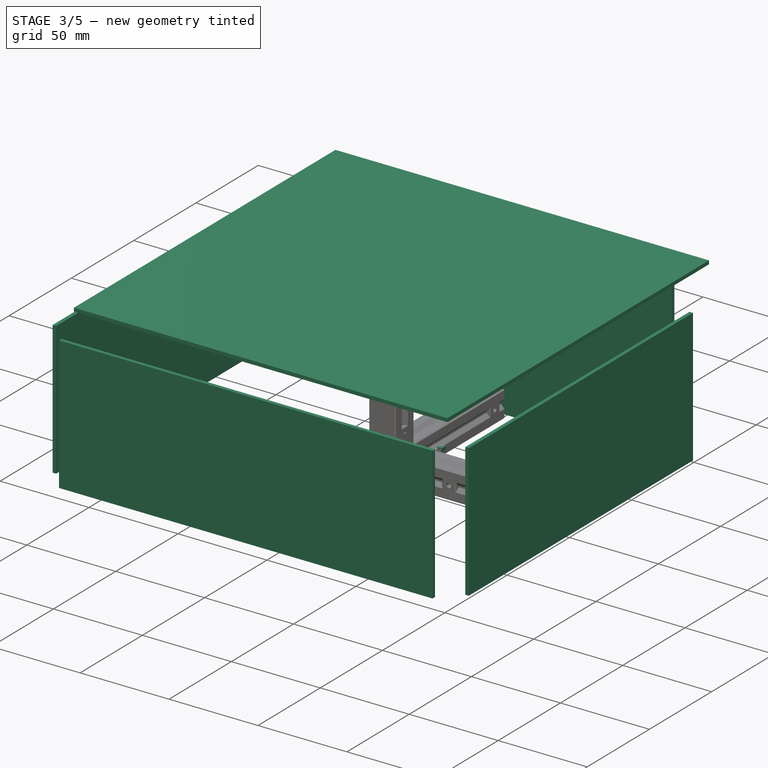
[diagram: stage 3 of 5 — iso view after this stage's code; geometry added in this stage tinted green]
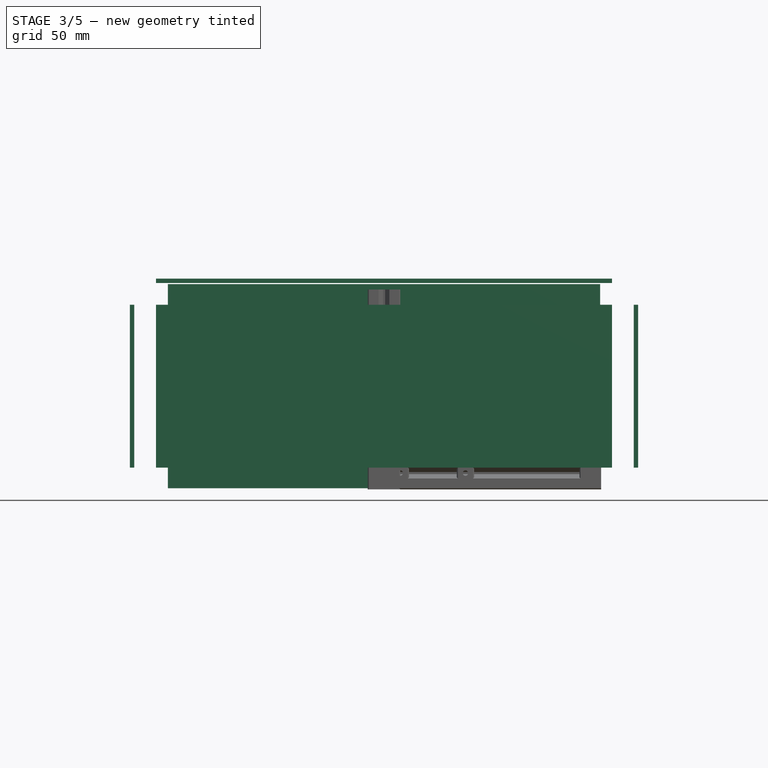
[diagram: stage 3 of 5 — front view after this stage's code; geometry added in this stage tinted green]
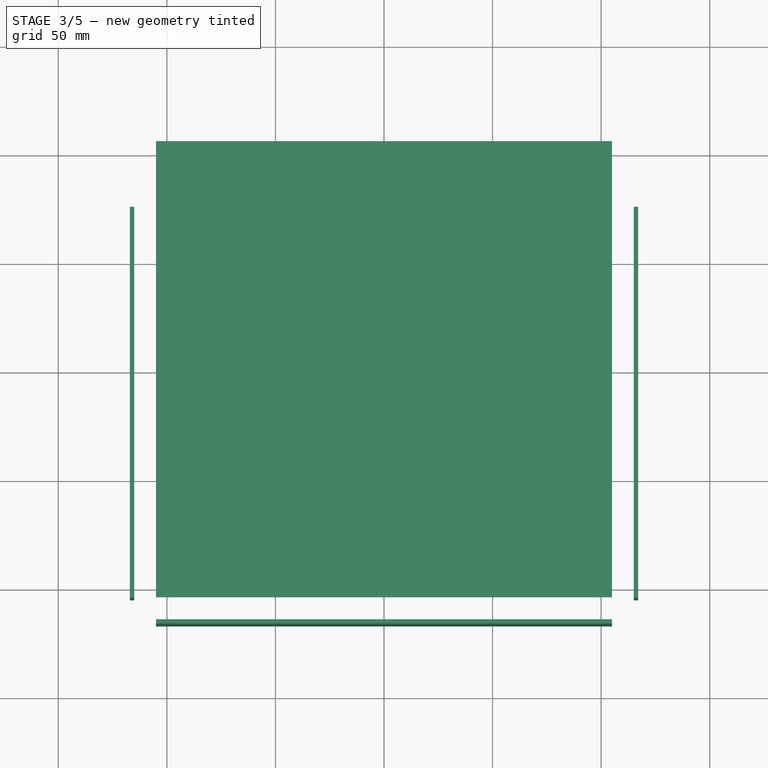
[diagram: stage 3 of 5 — top view after this stage's code; geometry added in this stage tinted green]
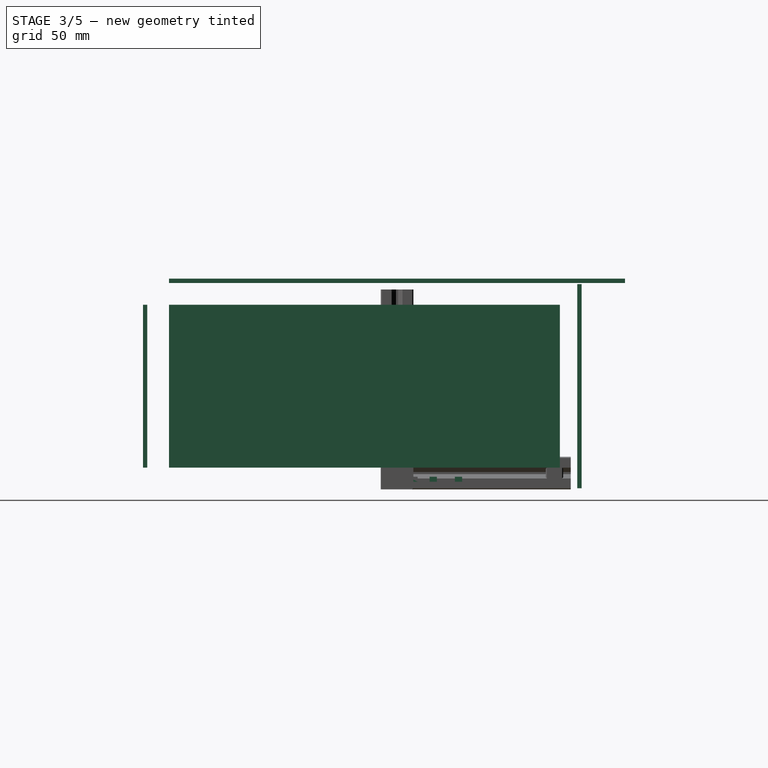
[diagram: stage 3 of 5 — right view after this stage's code; geometry added in this stage tinted green]
FEATURE [Part::Cylinder] Cylinder024
  Angle = 360
  AttacherType = Attacher::AttachEngine3D
  Height = 100
  Radius = 13
FEATURE [Part::MultiCommon] Common004
  Placement = pos=(-2e-15,0,7.5) rot=(0,1,0;1.5708rad)
  Shapes = -> [Cylinder024,Body001]
FEATURE [Part::Feature] Cut001021  label="_side-joiner008"
  Placement = pos=(7.5,-2e-15,7.5) rot=(0.57735,0.57735,0.57735;2.0944rad)
  shape: bbox 15 x 4.5 x 15 mm, 19 faces (baked)
FEATURE [Part::Feature] Cut001022  label="_side-joiner009"
  Placement = pos=(7.5,-2e-15,7.5) rot=(0,1,0;1.5708rad)
  shape: bbox 15 x 15 x 4.5 mm, 19 faces (baked)
FEATURE [Part::Box] Box002015  label="Cube017"
  AttacherType = Attacher::AttachEngine3D
  Height = 10
  Length = 10
  Placement = pos=(90,-7.5,2.5) rot=(0,0,1;0rad)
  Width = 4
FEATURE [Part::Feature] Cut001023  label="_side-joiner010"
  Placement = pos=(7.5,-2e-15,7.5) rot=(0.57735,-0.57735,0.57735;4.18879rad)
  shape: bbox 15 x 4.5 x 15 mm, 19 faces (baked)
FEATURE [Part::Box] Box002016  label="Cube018"
  AttacherType = Attacher::AttachEngine3D
  Height = 10
  Length = 10
  Placement = pos=(90,3.5,2.5) rot=(0,0,1;0rad)
  Width = 4
FEATURE [Part::Box] Box002017  label="Cube019"
  AttacherType = Attacher::AttachEngine3D
  Height = 10
  Length = 10
  Placement = pos=(90,5,11) rot=(1,0,0;1.5708rad)
  Width = 4
FEATURE [Part::MultiFuse] Fusion019
  Shapes = -> [Box002015,Box002017,Box002016]
FEATURE [Part::Chamfer] Chamfer012
  Base = -> Fusion019
  Edges = 3 edges r=0.5: [Edge6,Edge24,Edge48]
FEATURE [Part::Cylinder] Cylinder025
  Angle = 360
  AttacherType = Attacher::AttachEngine3D
  Height = 10
  Placement = pos=(7.5,3,7.5) rot=(-1,0,0;1.5708rad)
  Radius = 2.5
FEATURE [Part::Cylinder] Cylinder026
  Angle = 360
  AttacherType = Attacher::AttachEngine3D
  Height = 10
  Placement = pos=(7.5,-3,7.5) rot=(1,0,0;1.5708rad)
  Radius = 2.5
FEATURE [Part::Cylinder] Cylinder027
  Angle = 360
  AttacherType = Attacher::AttachEngine3D
  Height = 10
  Placement = pos=(7.5,0,10.5) rot=(0,0,1;0rad)
  Radius = 2.5
FEATURE [Part::MultiFuse] Fusion020
  Shapes = -> [Cylinder025,Cylinder027,Cylinder026]
FEATURE [Part::Cut] Cut001024
  Base = -> Common004
  Tool = -> Fusion020
FEATURE [Part::MultiFuse] Fusion021
  Shapes = -> [Cut001023,Cut001021,Cut001022]
FEATURE [Part::MultiFuse] Fusion022
  Shapes = -> [Cut001024,Fusion021]
FEATURE [Part::Cylinder] Cylinder028
  Angle = 360
  AttacherType = Attacher::AttachEngine3D
  Height = 5
  Placement = pos=(5,0,7.5) rot=(0,-1,0;1.5708rad)
  Radius = 3
FEATURE [Part::Cylinder] Cylinder029
  Angle = 360
  AttacherType = Attacher::AttachEngine3D
  Height = 5
  Placement = pos=(5,0,7.5) rot=(0,-1,0;1.5708rad)
  Radius = 2.05
FEATURE [Part::MultiFuse] Fusion023
  Shapes = -> [Fusion022,Cylinder028]
FEATURE [Part::Cut] Cut001025
  Base = -> Fusion023
  Tool = -> Cylinder029
FEATURE [Part::Cylinder] Cylinder030
  Angle = 360
  AttacherType = Attacher::AttachEngine3D
  Height = 10
  Placement = pos=(95,0,10.5) rot=(0,0,1;0rad)
  Radius = 2.05
FEATURE [Part::Cylinder] Cylinder031
  Angle = 360
  AttacherType = Attacher::AttachEngine3D
  Height = 10
  Placement = pos=(95,3,7.5) rot=(-1,0,0;1.5708rad)
  Radius = 2.05
FEATURE [Part::Cylinder] Cylinder032
  Angle = 360
  AttacherType = Attacher::AttachEngine3D
  Height = 10
  Placement = pos=(95,-3,7.5) rot=(1,0,0;1.5708rad)
  Radius = 2.05
FEATURE [Part::MultiFuse] Fusion024
  Shapes = -> [Cut001025,Chamfer012]
FEATURE [Part::MultiFuse] Fusion025
  Shapes = -> [Cylinder032,Cylinder031,Cylinder030]
FEATURE [Part::Cut] Cut001030
  Base = -> Fusion024
  Tool = -> Fusion025
FEATURE [Part::Cylinder] Cylinder035
  Angle = 360
  AttacherType = Attacher::AttachEngine3D
  Height = 2
  Placement = pos=(98,0,7.5) rot=(0,1,0;1.5708rad)
  Radius = 4
FEATURE [Part::Cut] Cut001031  label="100mm-common"
  Base = -> Cut001030
  Tool = -> Cylinder035
FEATURE [Part::Feature] Chamfer012008025001  label="back-panel-mount-001"
  Placement = pos=(-107.5,89,47.5) rot=(1,0,0;1.5708rad)
  shape: bbox 25 x 5.8 x 33 mm, 46 faces (baked)
FEATURE [Part::Feature] Chamfer012008025002  label="back-panel-mount-002"
  Placement = pos=(107.5,89,47.5) rot=(0,0.707107,-0.707107;3.14159rad)
  shape: bbox 25 x 5.8 x 33 mm, 46 faces (baked)
FEATURE [App::DocumentObjectGroup] Group007  label="Back-pannel-mount"
  Group = -> [Chamfer012008025002,Chamfer012008025001]
FEATURE [Part::Box] Box002030  label="Cube032"
  AttacherType = Attacher::AttachEngine3D
  Height = 2.3
  Length = 4.5
  Placement = pos=(5,26.65,3.5) rot=(0,0,1;0rad)
  Width = 3.35
FEATURE [Part::Box] Box002031  label="Cube033"
  AttacherType = Attacher::AttachEngine3D
  Height = 2.3
  Length = 4.5
  Placement = pos=(5,15,3.5) rot=(0,0,1;0rad)
  Width = 3.35
FEATURE [Part::Box] Box002032  label="Cube034"
  AttacherType = Attacher::AttachEngine3D
  Height = 2.3
  Length = 3.35
  Placement = pos=(26.65,5,3.5) rot=(0,0,1;0rad)
  Width = 4.5
FEATURE [Part::Box] Box002033  label="Cube035"
  AttacherType = Attacher::AttachEngine3D
  Height = 2.3
  Length = 3.35
  Placement = pos=(15,5,3.5) rot=(0,0,1;0rad)
  Width = 4.5
FEATURE [Part::Feature] Cut001038015011012002  label="_side-joiner022"
  Placement = pos=(0,0,22.5) rot=(0,0,1;3.14159rad)
  shape: bbox 4.5 x 15 x 15 mm, 19 faces (baked)
FEATURE [Part::Feature] Cut001038015011012003  label="_side-joiner023"
  Placement = pos=(0,0,72.5) rot=(0,0,1;3.14159rad)
  shape: bbox 4.5 x 15 x 15 mm, 19 faces (baked)
FEATURE [Part::MultiFuse] Fusion025019011008017
  Shapes = -> [Cut001038015011012003,Cut001038015011012002,Cut001038015011005,Cut001038015011007,Cut001001,Cut001038015011006,Cut001038015011008,Cut001002]
FEATURE [Part::MultiFuse] Fusion025019011008019  label="vertical-back"
  Shapes = -> [Cut001038015011012004,Fusion025019011008017]
FEATURE [Part::Feature] Fusion025019011008019001  label="vertical-back-001"
  Placement = pos=(-107.5,77.5,0) rot=(0,0,1;0rad)
  shape: bbox 15 x 15 x 80 mm, 95 faces (baked)
FEATURE [Part::Feature] Fusion025019011008019002  label="vertical-back-002"
  Placement = pos=(107.5,77.5,0) rot=(0,0,1;0rad)
  shape: bbox 15 x 15 x 80 mm, 95 faces (baked)
FEATURE [App::DocumentObjectGroup] Group002  label="Frame-assembly"
  Group = -> [Cut001031001,Cut001038002,Cut001031002,Cut001038003,Cut001038004,Cut001038005,Cut001038009,Cut001038010,Cut001038011,Cut001038012,Fusion025019001,Fusion025019002,Cut001038015001,Cut001038015002,Cut001038015011001,Cut001038015011002,Cut001038015011003,Cut001038015011004,Fusion025019011008019001,Fusion025019011008019002]
FEATURE [Part::Box] Box002034  label="180x75-panel-001"
  AttacherType = Attacher::AttachEngine3D
  Height = 75
  Length = 2
  Placement = pos=(-117,-105,10) rot=(0,0,1;0rad)
  Width = 180
FEATURE [Part::Box] Box002035  label="180x75-panel-002"
  AttacherType = Attacher::AttachEngine3D
  Height = 75
  Length = 2
  Placement = pos=(115,-105,10) rot=(0,0,1;0rad)
  Width = 180
FEATURE [Part::Box] Box002036  label="210x75-panel-001"
  AttacherType = Attacher::AttachEngine3D
  Height = 75
  Length = 210
  Placement = pos=(-105,-117,10) rot=(0,0,1;0rad)
  Width = 2
FEATURE [Part::Box] Box002037  label="210x120-panel-001"
  AttacherType = Attacher::AttachEngine3D
  Height = 2
  Length = 210
  Placement = pos=(-105,-105,95) rot=(0,0,1;0rad)
  Width = 210
FEATURE [Part::Box] Box002038  label="199x94-panel-001"
  AttacherType = Attacher::AttachEngine3D
  Height = 94
  Length = 199
  Placement = pos=(-99.5,83,0.5) rot=(0,0,1;0rad)
  Width = 2
FEATURE [App::DocumentObjectGroup] Group008  label="Panel"
  Group = -> [Box002034,Box002035,Box002036,Box002037,Box002038]
FEATURE [Part::Cylinder] Cylinder056
  Angle = 360
  AttacherType = Attacher::AttachEngine3D
  Height = 79
  Placement = pos=(10,0,7.5) rot=(0,1,0;1.5708rad)
  Radius = 3
FEATURE [Part::Box] Box002039  label="Cube036"
  AttacherType = Attacher::AttachEngine3D
  Height = 3
  Length = 100
  Placement = pos=(0,-3,0) rot=(0,0,1;0rad)
  Width = 6
FEATURE [Part::MultiFuse] Fusion025019011008019003  label="100mm-common-alt"
  Shapes = -> [Box002039,Cylinder056,Cut001031]
FEATURE [Part::MultiFuse] Fusion025019011008019004  label="vertical-back-alt"
  Shapes = -> [Cylinder057,Fusion025019011008019,Box002040]
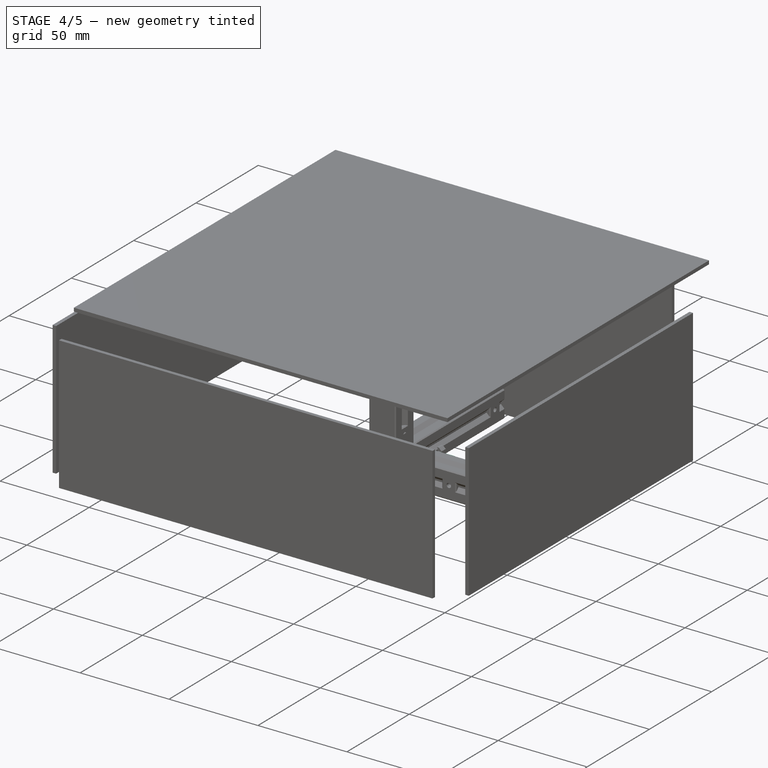
[diagram: stage 4 of 5 — iso view after this stage's code; geometry added in this stage tinted green]
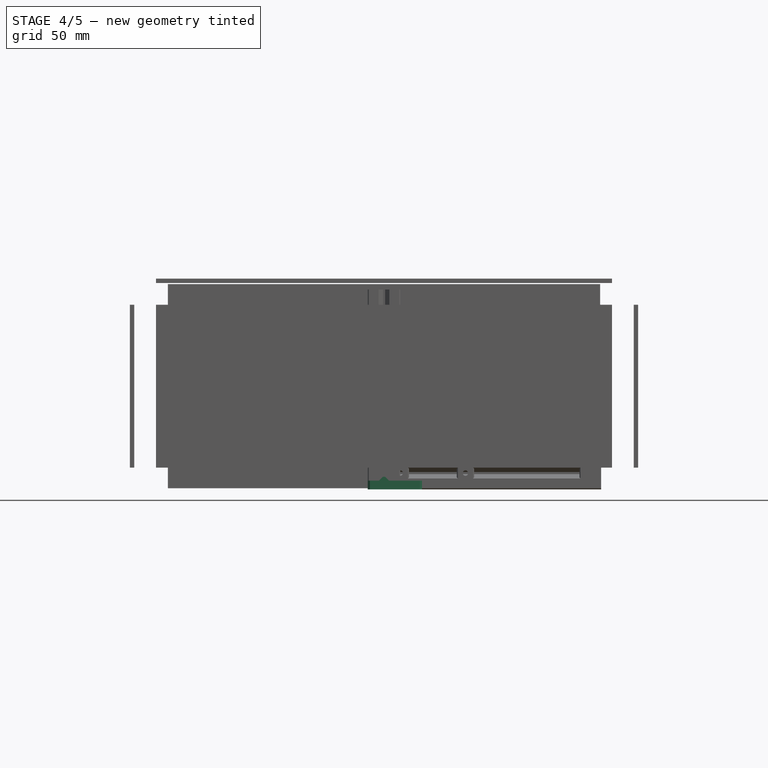
[diagram: stage 4 of 5 — front view after this stage's code; geometry added in this stage tinted green]
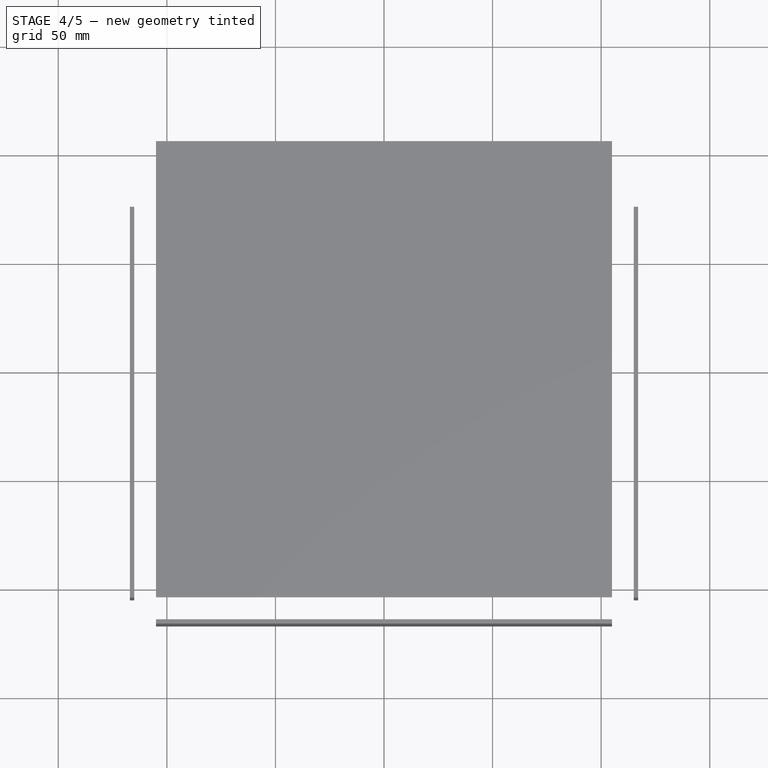
[diagram: stage 4 of 5 — top view after this stage's code; geometry added in this stage tinted green]
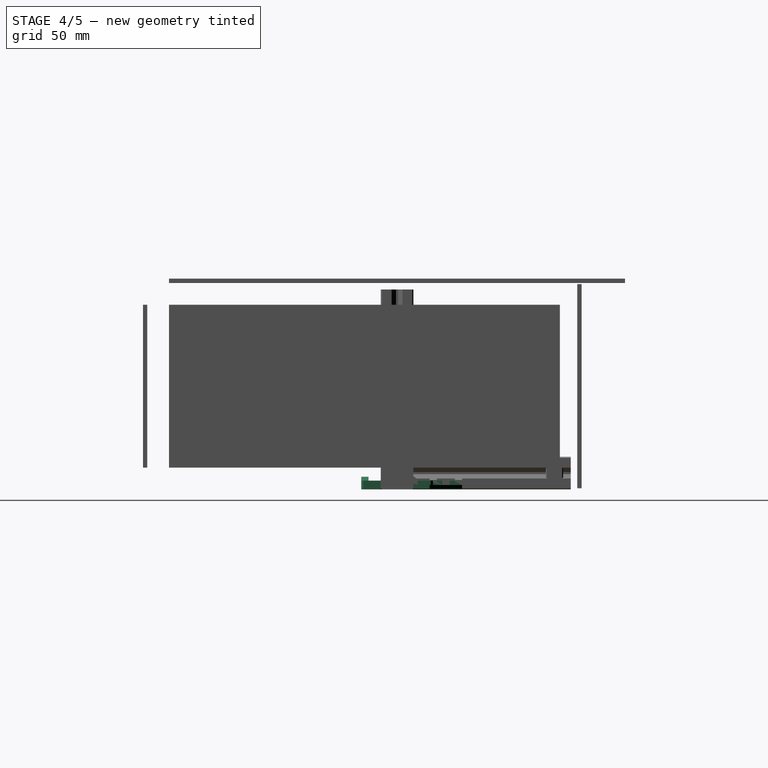
[diagram: stage 4 of 5 — right view after this stage's code; geometry added in this stage tinted green]
FEATURE [Part::Box] Box002018  label="Cube020"
  AttacherType = Attacher::AttachEngine3D
  Height = 4
  Length = 30
  Width = 30
FEATURE [Part::Box] Box002019  label="Cube021"
  AttacherType = Attacher::AttachEngine3D
  Height = 4
  Length = 30
  Placement = pos=(9.5,9.5,2) rot=(0,0,1;0rad)
  Width = 30
FEATURE [Part::Cut] Cut001039
  Base = -> Box002018
  Tool = -> Box002019
FEATURE [Part::Chamfer] Chamfer012002
  Base = -> Cut001039
  Edges = 1 edges r=15: [Edge12]
FEATURE [Part::Chamfer] Chamfer012003
  Base = -> Chamfer012002
  Edges = 3 edges r=1: [Edge6,Edge22,Edge24]
FEATURE [Part::Fillet] Fillet001
  Base = -> Chamfer012003
  Edges = 2 edges r=1: [Edge3,Edge16]
FEATURE [Part::Cylinder] Cylinder040
  Angle = 360
  AttacherType = Attacher::AttachEngine3D
  Height = 10
  Placement = pos=(7.5,22.5,0) rot=(0,0,1;0rad)
  Radius = 1.7
FEATURE [Part::Cylinder] Cylinder041
  Angle = 360
  AttacherType = Attacher::AttachEngine3D
  Height = 10
  Placement = pos=(22.5,7.5,0) rot=(0,0,1;0rad)
  Radius = 1.7
FEATURE [Part::Box] Box002020  label="Cube022"
  AttacherType = Attacher::AttachEngine3D
  Height = 10
  Length = 3.4
  Placement = pos=(20.8,7.3,2) rot=(0,0,1;0rad)
  Width = 4
FEATURE [Part::Box] Box002021  label="Cube023"
  AttacherType = Attacher::AttachEngine3D
  Height = 10
  Length = 4
  Placement = pos=(7.3,20.8,2) rot=(0,0,1;0rad)
  Width = 3.4
FEATURE [Part::MultiFuse] Fusion025007
  Shapes = -> [Cylinder040,Box002021]
FEATURE [Part::MultiFuse] Fusion025008
  Shapes = -> [Cylinder041,Box002020]
FEATURE [Part::MultiFuse] Fusion025009
  Shapes = -> [Fusion025007,Fusion025008]
FEATURE [Part::Cut] Cut001040
  Base = -> Fillet001
  Tool = -> Fusion025009
FEATURE [Part::Chamfer] Chamfer012004  label="corner-join"
  Base = -> Cut001040
  Edges = 12 edges r=0.4: [Edge1,Edge7,Edge8,Edge9,Edge10,Edge11,Edge12,Edge13,Edge14,Edge15,Edge16,Edge17]
FEATURE [Part::Box] Box002023  label="Cube025"
  AttacherType = Attacher::AttachEngine3D
  Height = 2.3
  Length = 4.5
  Placement = pos=(-2,0,3.5) rot=(0,0,1;0rad)
  Width = 25
FEATURE [Part::Chamfer] Chamfer012005
  Base = -> Box002023
  Edges = 1 edges r=2: [Edge6]
FEATURE [Part::Feature] Cut001038015011005  label="_side-joiner018"
  Placement = pos=(0,0,56.5) rot=(0,0,1;1.5708rad)
  shape: bbox 15 x 4.5 x 15 mm, 19 faces (baked)
FEATURE [Part::Feature] Cut001038015011006  label="_side-joiner019"
  Placement = pos=(0,0,38.5) rot=(0,0,-1;1.5708rad)
  shape: bbox 15 x 4.5 x 15 mm, 19 faces (baked)
FEATURE [Part::Feature] Chamfer012008019  label="joiner-003"
  Placement = pos=(-12.5,107.5,76) rot=(0,0,-1;1.5708rad)
  shape: bbox 25 x 12 x 5.8 mm, 30 faces (baked)
FEATURE [Part::Feature] Chamfer012008020  label="joiner-004"
  Placement = pos=(-12.5,-107.5,19) rot=(0.707107,0.707107,0;3.14159rad)
  shape: bbox 25 x 12 x 5.8 mm, 30 faces (baked)
FEATURE [Part::Feature] Chamfer012008021  label="joiner-005"
  Placement = pos=(-107.5,-27.5,19) rot=(0,1,0;3.14159rad)
  shape: bbox 12 x 25 x 5.8 mm, 30 faces (baked)
FEATURE [Part::Feature] Chamfer012008022  label="joiner-006"
  Placement = pos=(107.5,-27.5,19) rot=(0,1,0;3.14159rad)
  shape: bbox 12 x 25 x 5.8 mm, 30 faces (baked)
FEATURE [App::DocumentObjectGroup] Group006  label="Middle-join"
  Group = -> [Chamfer012008018,Chamfer010001,Chamfer012008019,Chamfer012008020,Chamfer012008021,Chamfer012008022]
FEATURE [Part::Box] Box002024  label="Cube026"
  AttacherType = Attacher::AttachEngine3D
  Height = 4
  Length = 15
  Placement = pos=(-7.5,-17,0) rot=(0,0,1;0rad)
  Width = 34
FEATURE [Part::Box] Box002025  label="Cube027"
  AttacherType = Attacher::AttachEngine3D
  Height = 2.8
  Length = 5
  Placement = pos=(-2.5,-13.15,3) rot=(0,0,1;0rad)
  Width = 26.3
FEATURE [Part::Box] Box002026  label="Cube028"
  AttacherType = Attacher::AttachEngine3D
  Height = 2.8
  Length = 5
  Placement = pos=(-2.5,-17,3) rot=(0,0,1;0rad)
  Width = 34
FEATURE [Part::Chamfer] Chamfer012008023
  Base = -> Box002026
  Edges = 2 edges r=2: [Edge2,Edge6]
FEATURE [Part::Cut] Cut001038015011010
  Base = -> Chamfer012008023
  Tool = -> Box002025
FEATURE [Part::MultiFuse] Fusion025019011003
  Shapes = -> [Box002024,Cut001038015011010]
FEATURE [Part::Cylinder] Cylinder050
  Angle = 360
  AttacherType = Attacher::AttachEngine3D
  Height = 10
  Placement = pos=(0,9,0) rot=(0,0,1;0rad)
  Radius = 1.7
FEATURE [Part::Cylinder] Cylinder051
  Angle = 360
  AttacherType = Attacher::AttachEngine3D
  Height = 10
  Placement = pos=(0,-9,0) rot=(0,0,1;0rad)
  Radius = 1.7
FEATURE [Part::MultiFuse] Fusion025019011004
  Shapes = -> [Cylinder051,Cylinder050]
FEATURE [Part::Cut] Cut001038015011011
  Base = -> Fusion025019011003
  Tool = -> Fusion025019011004
FEATURE [Part::Box] Box002027  label="Cube029"
  AttacherType = Attacher::AttachEngine3D
  Height = 10
  Length = 15
  Placement = pos=(-7.5,-16.5,0) rot=(0,0,1;0rad)
  Width = 33
FEATURE [Part::MultiCommon] Common004002
  Shapes = -> [Box002027,Cut001038015011011]
FEATURE [Part::Box] Box002028  label="Cube030"
  AttacherType = Attacher::AttachEngine3D
  Height = 4
  Length = 10
  Placement = pos=(7.5,6.5,0) rot=(0,0,1;0rad)
  Width = 10
FEATURE [Part::Box] Box002029  label="Cube031"
  AttacherType = Attacher::AttachEngine3D
  Height = 4
  Length = 10
  Placement = pos=(7.5,-16.5,0) rot=(0,0,1;0rad)
  Width = 10
FEATURE [Part::Cylinder] Cylinder052
  Angle = 360
  AttacherType = Attacher::AttachEngine3D
  Height = 10
  Placement = pos=(12.5,11.5,0) rot=(0,0,1;0rad)
  Radius = 2.05
FEATURE [Part::Cylinder] Cylinder053
  Angle = 360
  AttacherType = Attacher::AttachEngine3D
  Height = 10
  Placement = pos=(12.5,-11.5,0) rot=(0,0,1;0rad)
  Radius = 2.05
FEATURE [Part::MultiFuse] Fusion025019011005
  Shapes = -> [Common004002,Box002028,Box002029]
FEATURE [Part::Chamfer] Chamfer012008024
  Base = -> Fusion025019011005
  Edges = 8 edges r=1: [Edge1,Edge3,Edge7,Edge13,Edge33,Edge41,Edge54,Edge64]
FEATURE [Part::MultiFuse] Fusion025019011006
  Shapes = -> [Cylinder052,Cylinder053]
FEATURE [Part::Cut] Cut001038015011012
  Base = -> Chamfer012008024
  Tool = -> Fusion025019011006
FEATURE [Part::Feature] Cut001038015011012001  label="Cut001038015011013"
  shape: bbox 25 x 33 x 5.8 mm, 30 faces (baked)
FEATURE [Part::Chamfer] Chamfer012008025  label="back-panel-mount"
  Base = -> Cut001038015011012001
  Edges = 16 edges r=1: [Edge37,Edge41,Edge42,Edge52,Edge55,Edge59,Edge60,Edge61,Edge64,Edge65,Edge67,Edge69,Edge72,Edge73,Edge83,Edge84]
FEATURE [Part::MultiFuse] Fusion025019011007
  Shapes = -> [Box002030,Box002031,Box002033,Box002032]
FEATURE [Part::Chamfer] Chamfer012008025003
  Base = -> Fusion025019011007
  Edges = 4 edges r=2: [Edge2,Edge14,Edge34,Edge46]
FEATURE [Part::Chamfer] Chamfer012008025004
  Base = -> Chamfer012008025003
  Edges = 4 edges r=1.5: [Edge15,Edge30,Edge43,Edge58]
FEATURE [Part::MultiFuse] Fusion025019011008  label="corner-join-f1"
  Shapes = -> [Chamfer012004,Chamfer012008025004]
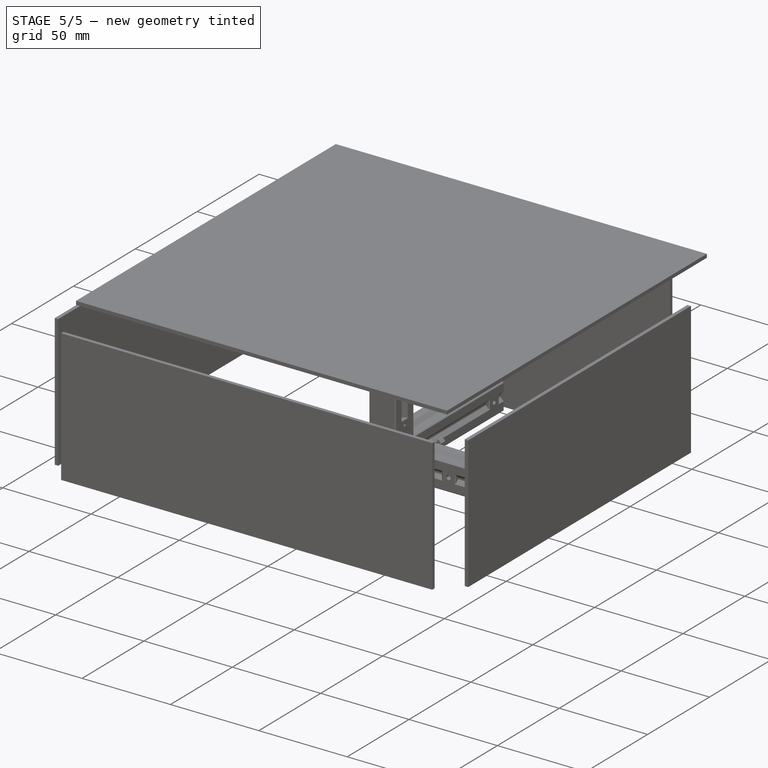
[diagram: stage 5 of 5 — iso view after this stage's code; geometry added in this stage tinted green]
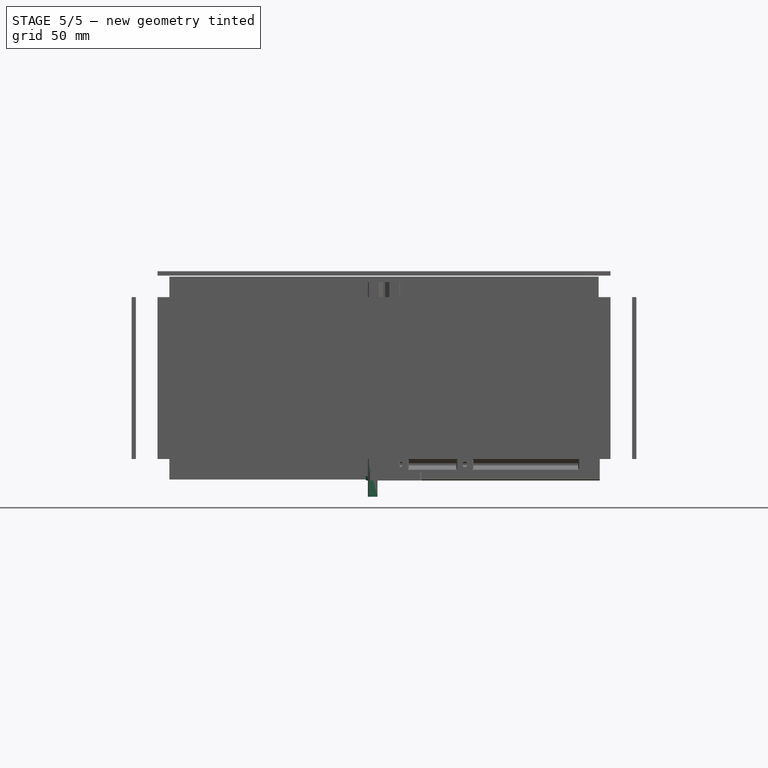
[diagram: stage 5 of 5 — front view after this stage's code; geometry added in this stage tinted green]
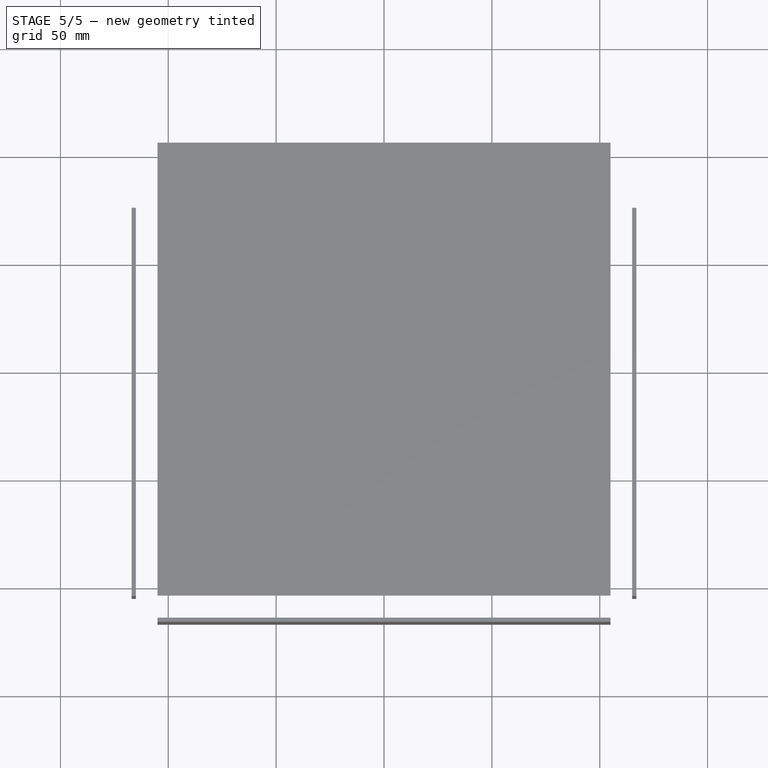
[diagram: stage 5 of 5 — top view after this stage's code; geometry added in this stage tinted green]
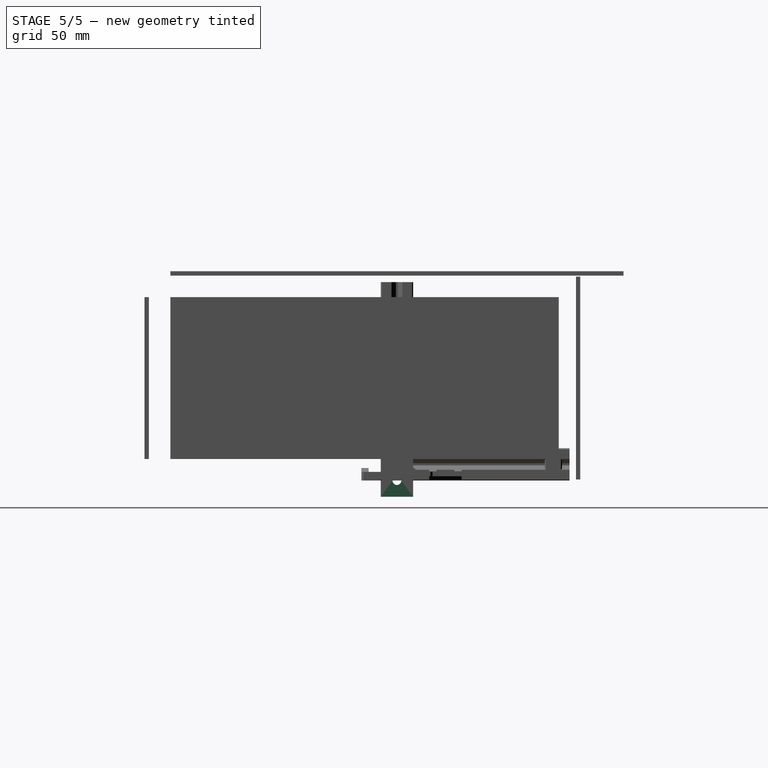
[diagram: stage 5 of 5 — right view after this stage's code; geometry added in this stage tinted green]
FEATURE [Sketcher::SketchObject] Sketch
  MapMode = 5
  Support = -> [XY_Plane]
  sketch-geometry (29):
    g0: LineSegment [constr] StartX=-7.5 StartY=7.5 StartZ=0 EndX=7.5 EndY=7.5 EndZ=0
    g1: LineSegment [constr] StartX=7.5 StartY=7.5 StartZ=0 EndX=7.5 EndY=-7.5 EndZ=0
    g2: LineSegment [constr] StartX=7.5 StartY=-7.5 StartZ=0 EndX=-7.5 EndY=-7.5 EndZ=0
    g3: LineSegment [constr] StartX=-7.5 StartY=-7.5 StartZ=0 EndX=-7.5 EndY=7.5 EndZ=0
    g4: LineSegment StartX=-7 StartY=7.5 StartZ=0 EndX=-7.5 EndY=7 EndZ=0
    g5: LineSegment StartX=-7.5 StartY=7 StartZ=0 EndX=-7.5 EndY=2.5 EndZ=0
    g6: LineSegment StartX=-7.5 StartY=2.5 StartZ=0 EndX=-5.5 EndY=0.5 EndZ=0
    g7: LineSegment StartX=-5.5 StartY=0.5 StartZ=0 EndX=-5.5 EndY=-0.5 EndZ=0
    g8: LineSegment StartX=-5.5 StartY=-0.5 StartZ=0 EndX=-7.5 EndY=-2.5 EndZ=0
    g9: LineSegment StartX=-7.5 StartY=-2.5 StartZ=0 EndX=-7.5 EndY=-7 EndZ=0
    g10: LineSegment StartX=-7.5 StartY=-7 StartZ=0 EndX=-7 EndY=-7.5 EndZ=0
    g11: LineSegment StartX=-7 StartY=-7.5 StartZ=0 EndX=-2.5 EndY=-7.5 EndZ=0
    g12: LineSegment StartX=-2.5 StartY=-7.5 StartZ=0 EndX=-0.5 EndY=-5.5 EndZ=0
    g13: LineSegment StartX=-0.5 StartY=-5.5 StartZ=0 EndX=0.5 EndY=-5.5 EndZ=0
    g14: LineSegment StartX=0.5 StartY=-5.5 StartZ=0 EndX=2.5 EndY=-7.5 EndZ=0
    g15: LineSegment StartX=2.5 StartY=-7.5 StartZ=0 EndX=7 EndY=-7.5 EndZ=0
    g16: LineSegment StartX=7 StartY=-7.5 StartZ=0 EndX=7.5 EndY=-7 EndZ=0
    g17: LineSegment StartX=7.5 StartY=-7 StartZ=0 EndX=7.5 EndY=-2.5 EndZ=0
    g18: LineSegment StartX=7.5 StartY=-2.5 StartZ=0 EndX=5.5 EndY=-0.5 EndZ=0
    g19: LineSegment StartX=5.5 StartY=-0.5 StartZ=0 EndX=5.5 EndY=0.5 EndZ=0
    g20: LineSegment StartX=5.5 StartY=0.5 StartZ=0 EndX=7.5 EndY=2.5 EndZ=0
    g21: LineSegment StartX=7.5 StartY=2.5 StartZ=0 EndX=7.5 EndY=7 EndZ=0
    g22: LineSegment StartX=7.5 StartY=7 StartZ=0 EndX=7 EndY=7.5 EndZ=0
    g23: LineSegment StartX=7 StartY=7.5 StartZ=0 EndX=2.5 EndY=7.5 EndZ=0
    g24: LineSegment StartX=2.5 StartY=7.5 StartZ=0 EndX=0.5 EndY=5.5 EndZ=0
    g25: LineSegment StartX=0.5 StartY=5.5 StartZ=0 EndX=-0.5 EndY=5.5 EndZ=0
    g26: LineSegment StartX=-0.5 StartY=5.5 StartZ=0 EndX=-2.5 EndY=7.5 EndZ=0
    g27: LineSegment StartX=-2.5 StartY=7.5 StartZ=0 EndX=-7 EndY=7.5 EndZ=0
    g28: Circle CenterX=0 CenterY=0 CenterZ=0 NormalX=0 NormalY=0 NormalZ=1 AngleXU=0 Radius=2.6
  constraints (36):
    c: Coincident(g0,g1)
    c: Coincident(g1,g2)
    c: Coincident(g2,g3)
    c: Coincident(g3,g0)
    c: Horizontal(g0)
    c: Horizontal(g2)
    c: Vertical(g1)
    c: Vertical(g3)
    c: DistanceY(g-1,g0) = 7.5
    c: DistanceY(g2,g-1) = 7.5
    c: DistanceX(g0,g-1) = 7.5
    c: DistanceX(g-1,g1) = 7.5
    c: Coincident(g4,g5)
    c: Coincident(g5,g6)
    c: Coincident(g6,g7)
    c: Coincident(g7,g8)
    c: Coincident(g8,g9)
    c: Coincident(g9,g10)
    c: Coincident(g10,g11)
    c: Coincident(g11,g12)
    c: Coincident(g12,g13)
    c: Coincident(g13,g14)
    c: Coincident(g14,g15)
    c: Coincident(g15,g16)
    c: Coincident(g16,g17)
    c: Coincident(g17,g18)
    c: Coincident(g18,g19)
    c: Coincident(g19,g20)
    c: Coincident(g20,g21)
    c: Coincident(g21,g22)
    c: Coincident(g22,g23)
    c: Coincident(g23,g24)
    c: Coincident(g24,g25)
    c: Coincident(g25,g26)
    c: Coincident(g26,g27)
    c: Coincident(g27,g4)
FEATURE [PartDesign::Body] Body  label="1515-extrusion-base"
  Group = -> [Sketch]
  Origin = -> Origin
FEATURE [Part::Feature] Body001  label="_extrusion-base-300mm"
  shape: bbox 15 x 15 x 300 mm, 27 faces (baked)
FEATURE [Part::Feature] Body002  label="_extrusion-base-300mm001"
  shape: bbox 15 x 15 x 300 mm, 27 faces (baked)
FEATURE [Part::Cylinder] Cylinder
  Angle = 360
  AttacherType = Attacher::AttachEngine3D
  Height = 15
  Radius = 15
FEATURE [Part::MultiCommon] Common
  Shapes = -> [Cylinder,Body002]
FEATURE [Part::Cylinder] Cylinder001
  Angle = 360
  AttacherType = Attacher::AttachEngine3D
  Height = 4.5
  Placement = pos=(-3,0,7.5) rot=(0,-1,0;1.5708rad)
  Radius = 2.05
FEATURE [Part::Box] Box  label="Cube"
  AttacherType = Attacher::AttachEngine3D
  Height = 8
  Length = 4
  Placement = pos=(-7.5,-3,3.5) rot=(0,0,1;0rad)
  Width = 6
FEATURE [Part::Chamfer] Chamfer
  Base = -> Box
  Edges = 2 edges r=0.5: [Edge2,Edge4]
FEATURE [Part::MultiFuse] Fusion
  Shapes = -> [Chamfer,Common]
FEATURE [Part::Box] Box001  label="Cube001"
  AttacherType = Attacher::AttachEngine3D
  Height = 16
  Length = 11
  Placement = pos=(-3,-8.5,0) rot=(0,0,1;0rad)
  Width = 17
FEATURE [Part::Cut] Cut
  Base = -> Fusion
  Tool = -> Box001
FEATURE [Part::Cut] Cut001  label="_side-joiner"
  Base = -> Cut
  Placement = pos=(0,0,-7.5) rot=(0,0,1;0rad)
  Tool = -> Cylinder001
FEATURE [Part::Box] Box002003  label="Cube005"
  AttacherType = Attacher::AttachEngine3D
  Height = 4
  Length = 15
  Width = 25
FEATURE [Part::Box] Box002004  label="Cube006"
  AttacherType = Attacher::AttachEngine3D
  Height = 4
  Length = 15
  Placement = pos=(-8.5,0,2) rot=(0,0,1;0rad)
  Width = 25
FEATURE [Part::Cut] Cut001014
  Base = -> Box002003
  Placement = pos=(-8.5,0,0) rot=(0,0,1;0rad)
  Tool = -> Box002004
FEATURE [Part::Cylinder] Cylinder018
  Angle = 360
  AttacherType = Attacher::AttachEngine3D
  Height = 10
  Placement = pos=(7.5,17.5,0) rot=(0,0,1;0rad)
  Radius = 1.7
FEATURE [Part::Cylinder] Cylinder019
  Angle = 360
  AttacherType = Attacher::AttachEngine3D
  Height = 10
  Placement = pos=(7.5,7.5,0) rot=(0,0,1;0rad)
  Radius = 1.7
FEATURE [Part::Box] Box002005  label="Cube007"
  AttacherType = Attacher::AttachEngine3D
  Height = 8
  Length = 2
  Placement = pos=(5.5,5.8,2) rot=(0,0,1;0rad)
  Width = 3.4
FEATURE [Part::Box] Box002006  label="Cube008"
  AttacherType = Attacher::AttachEngine3D
  Height = 8
  Length = 2
  Placement = pos=(5.5,15.8,2) rot=(0,0,1;0rad)
  Width = 3.4
FEATURE [Part::MultiFuse] Fusion014
  Placement = pos=(-7.5,0,0) rot=(0,0,1;0rad)
  Shapes = -> [Box002005,Cylinder019,Box002006,Cylinder018]
FEATURE [Part::Cylinder] Cylinder020
  Angle = 360
  AttacherType = Attacher::AttachEngine3D
  Height = 3.8
  Placement = pos=(0,0,-1.9) rot=(0,0,1;0rad)
  Radius = 3.85
FEATURE [Part::Cylinder] Cylinder021
  Angle = 360
  AttacherType = Attacher::AttachEngine3D
  Height = 20
  Placement = pos=(0,0,-10) rot=(0,0,1;0rad)
  Radius = 2.5
FEATURE [Part::Box] Box002011  label="Cube013"
  AttacherType = Attacher::AttachEngine3D
  Height = 10
  Length = 10
  Placement = pos=(-5,-10,0) rot=(0,0,1;0rad)
  Width = 20
FEATURE [Part::Box] Box002012  label="Cube014"
  AttacherType = Attacher::AttachEngine3D
  Height = 4
  Length = 12
  Placement = pos=(-6,0,0) rot=(0,0,1;0rad)
  Width = 25
FEATURE [Part::Cylinder] Cylinder022
  Angle = 360
  AttacherType = Attacher::AttachEngine3D
  Height = 10
  Placement = pos=(0,17.5,0) rot=(0,0,1;0rad)
  Radius = 1.7
FEATURE [Part::Cylinder] Cylinder023
  Angle = 360
  AttacherType = Attacher::AttachEngine3D
  Height = 10
  Placement = pos=(0,7.5,0) rot=(0,0,1;0rad)
  Radius = 1.7
FEATURE [Part::Box] Box002013  label="Cube015"
  AttacherType = Attacher::AttachEngine3D
  Height = 2.8
  Length = 5
  Placement = pos=(-2.5,2.35,3) rot=(0,0,1;0rad)
  Width = 20.3
FEATURE [Part::Box] Box002014  label="Cube016"
  AttacherType = Attacher::AttachEngine3D
  Height = 2.8
  Length = 5
  Placement = pos=(-2.5,0,3) rot=(0,0,1;0rad)
  Width = 25
FEATURE [Part::Chamfer] Chamfer008
  Base = -> Box002014
  Edges = 2 edges r=2: [Edge2,Edge6]
FEATURE [Part::Cut] Cut001018
  Base = -> Chamfer008
  Tool = -> Box002013
FEATURE [Part::MultiFuse] Fusion016
  Shapes = -> [Box002012,Cut001018]
FEATURE [Part::MultiFuse] Fusion017
  Shapes = -> [Cylinder022,Cylinder023]
FEATURE [Part::Cut] Cut001019
  Base = -> Fusion016
  Tool = -> Fusion017
FEATURE [Part::Chamfer] Chamfer009
  Base = -> Cut001019
  Edges = 4 edges r=2: [Edge1,Edge3,Edge5,Edge25]
FEATURE [Part::Chamfer] Chamfer010  label="joiner"
  Base = -> Chamfer009
  Edges = 10 edges r=0.4: [Edge4,Edge22,Edge24,Edge26,Edge27,Edge28,Edge29,Edge30,Edge31,Edge32]
FEATURE [Part::MultiFuse] Fusion018
  Placement = pos=(0,0,0) rot=(-1,0,0;1.5708rad)
  Shapes = -> [Cylinder020,Cylinder021]
FEATURE [Part::Cut] Cut001020
  Base = -> Fusion018
  Placement = pos=(0,0,0) rot=(0,1,0;3.14159rad)
  Tool = -> Box002011
FEATURE [Part::Chamfer] Chamfer011  label="plug-pin"
  Base = -> Cut001020
  Edges = 4 edges r=0.2: [Edge1,Edge3,Edge17,Edge18]
FEATURE [Part::Feature] Fusion025019001  label="vertical-front-001"
  Placement = pos=(-107.5,-107.5,3) rot=(0,0,1;0rad)
  shape: bbox 15 x 15 x 92 mm, 80 faces (baked)
FEATURE [Part::Feature] Fusion025019002  label="vertical-front-002"
  Placement = pos=(107.5,-107.5,3) rot=(0,0,1;0rad)
  shape: bbox 15 x 15 x 92 mm, 80 faces (baked)
FEATURE [Part::Feature] Cut001038015001  label="100-top-back001"
  Placement = pos=(-107.5,100,80) rot=(0,0,-1;1.5708rad)
  shape: bbox 15 x 100 x 15 mm, 75 faces (baked)
FEATURE [Part::Feature] Cut001038015002  label="100-top-back002"
  Placement = pos=(107.5,100,80) rot=(0,0,-1;1.5708rad)
  shape: bbox 15 x 100 x 15 mm, 75 faces (baked)
FEATURE [Part::Box] Box002022  label="Cube024"
  AttacherType = Attacher::AttachEngine3D
  Height = 2.3
  Length = 4.5
  Placement = pos=(-2,2.35,3.5) rot=(0,0,1;0rad)
  Width = 20.3
FEATURE [Part::Chamfer] Chamfer012006
  Base = -> Chamfer012005
  Edges = 1 edges r=1.5: [Edge15]
FEATURE [Part::Cut] Cut001038015006
  Base = -> Chamfer012006
  Tool = -> Box002022
FEATURE [Part::MultiFuse] Fusion025019004
  Shapes = -> [Cut001014,Cut001038015006]
FEATURE [Part::Cut] Cut001038015007
  Base = -> Fusion025019004
  Tool = -> Fusion014
FEATURE [Part::Chamfer] Chamfer012007
  Base = -> Cut001038015007
  Edges = 2 edges r=5: [Edge1,Edge3]
FEATURE [Part::Chamfer] Chamfer012008  label="panel-clip"
  Base = -> Chamfer012007
  Edges = 24 edges r=0.4: [Edge2,Edge3,Edge4,Edge14,Edge16,Edge18,Edge19,Edge20,Edge21,Edge22,Edge25,Edge29,Edge36,Edge38,Edge41,Edge51,Edge54,Edge57,Edge59,Edge62,Edge67,Edge68,Edge69,Edge70]
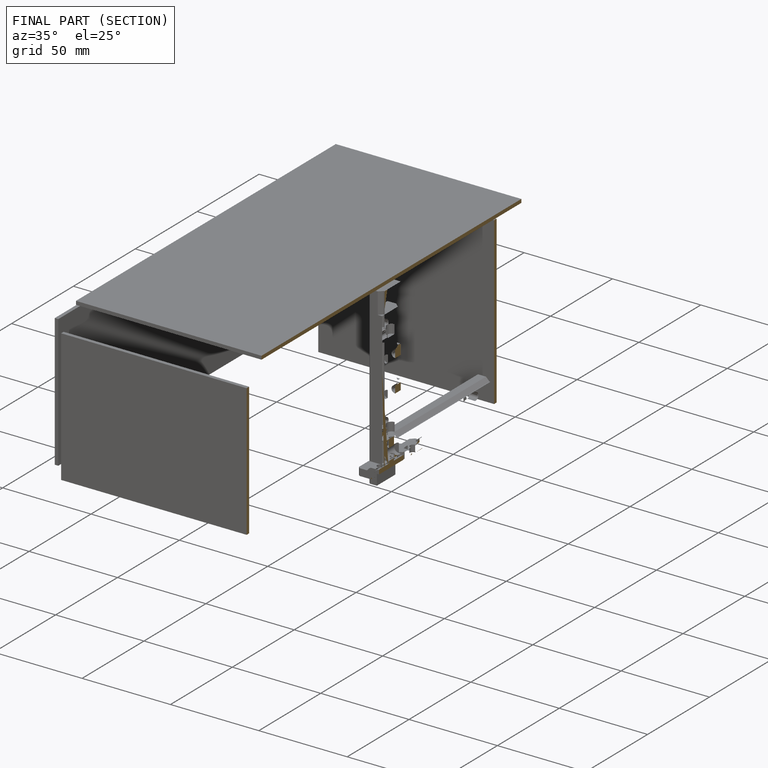
[diagram: finished part — half-section view (interior)]
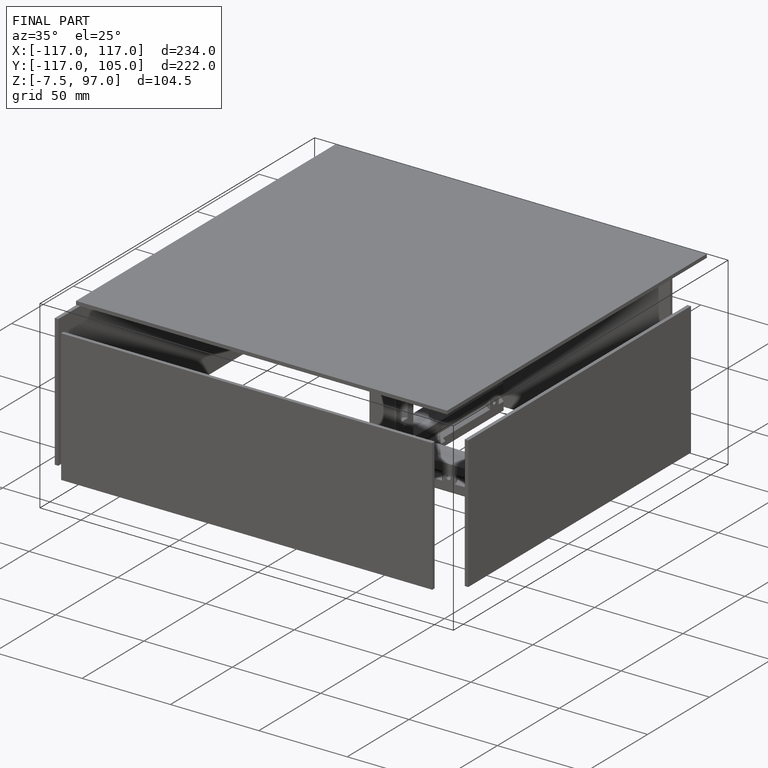
[diagram: finished part — iso view with bounding-box wireframe]
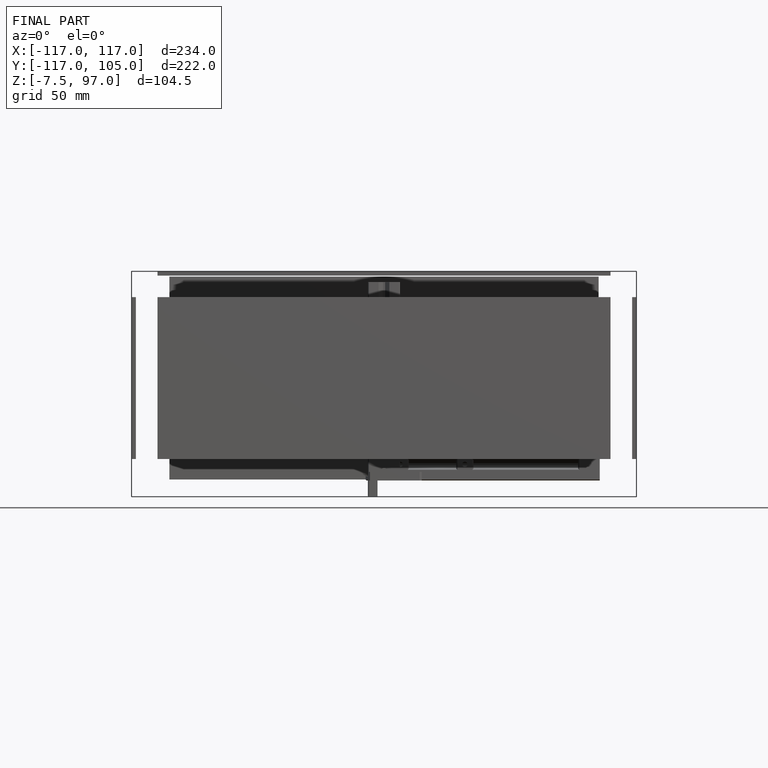
[diagram: finished part — front view with bounding-box wireframe]
